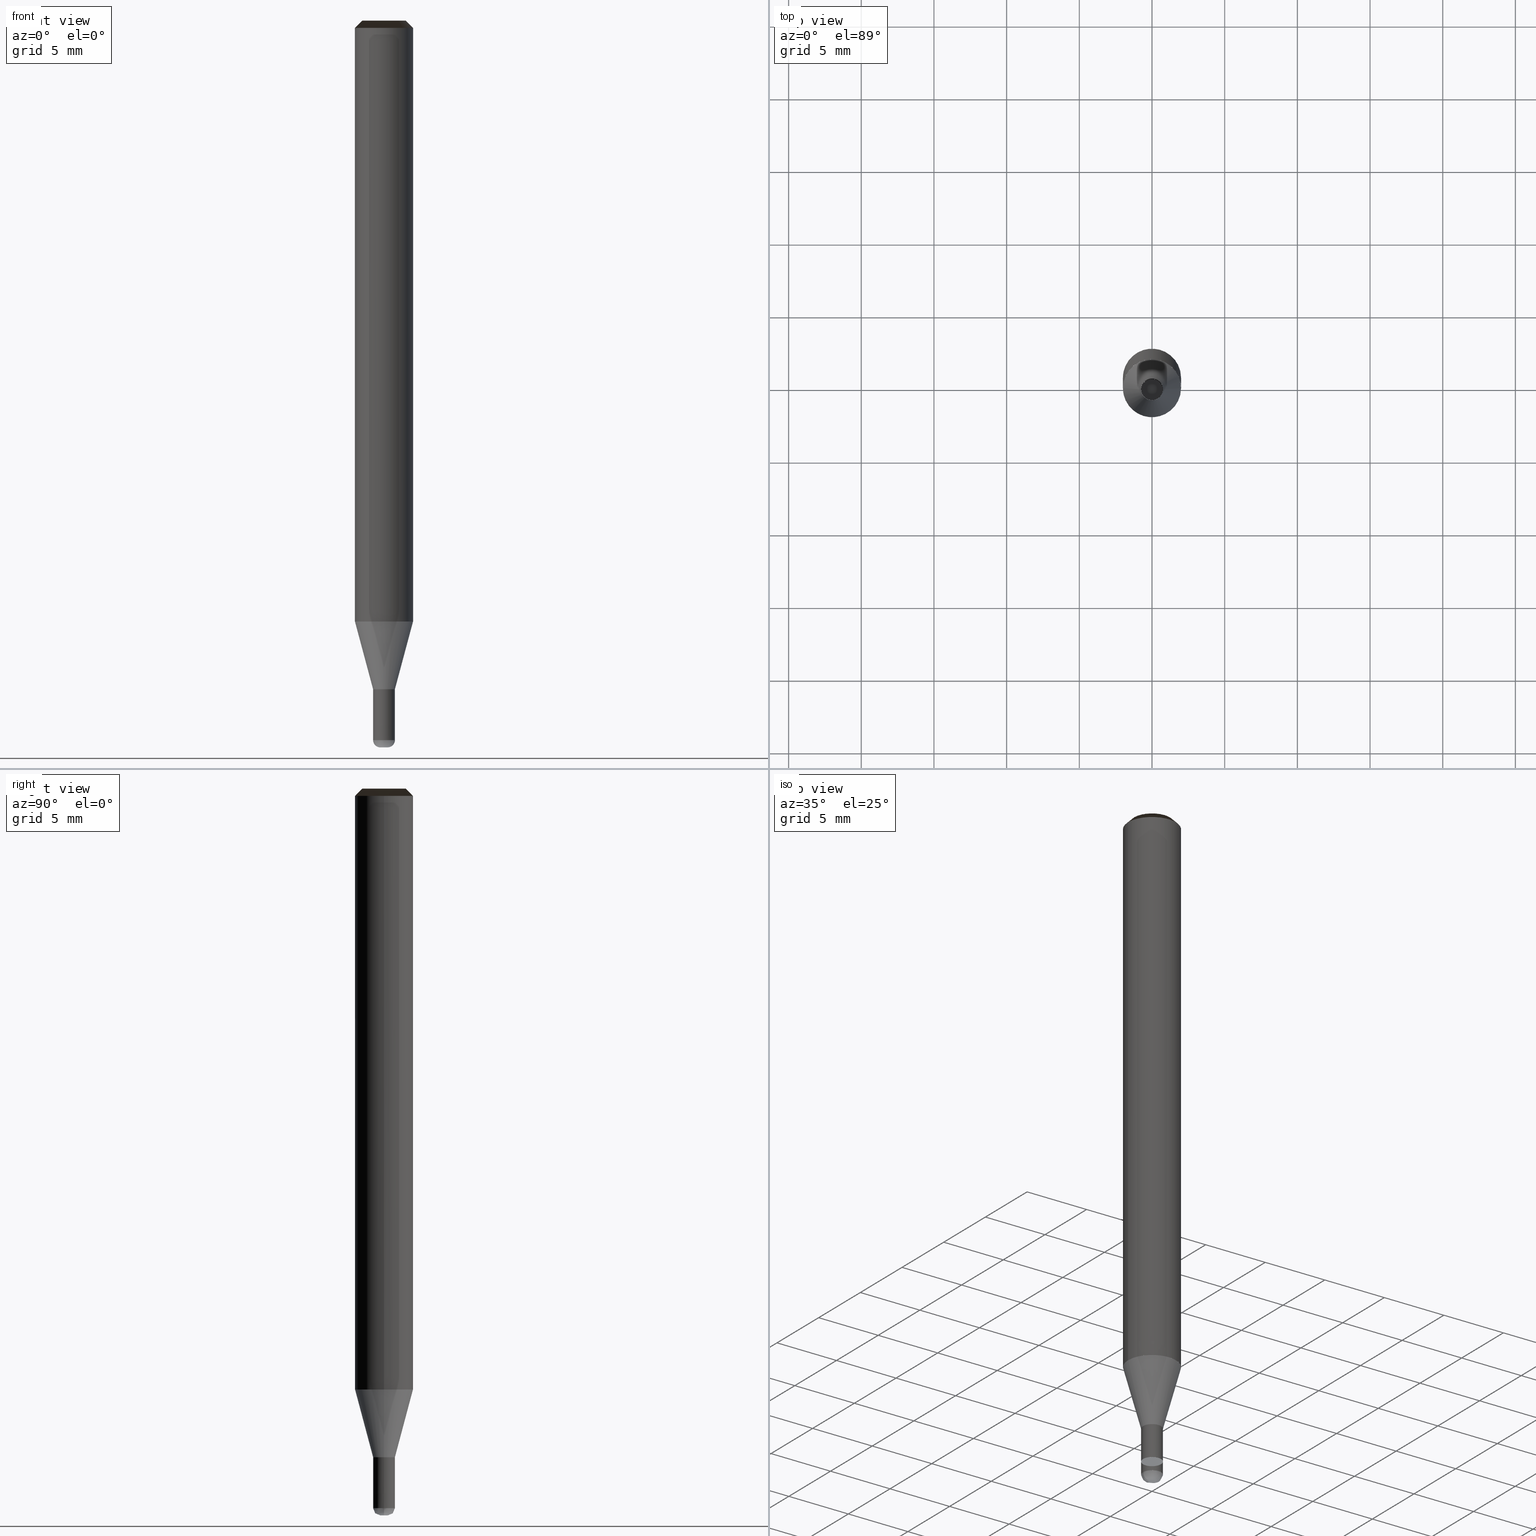
[diagram: canonical four-view strip — front | top / right | iso, engineering-drawing reading convention]
A machine part, canonical four-view strip (front | top / right | iso — engineering-drawing reading convention). The complete STEP part file that produces these views, byte-faithful:
ISO-10303-21;
HEADER;
/* Generated by ISBE GmbH (www.isbe.de) */
/* OPTION: using custom schema-name function */

FILE_DESCRIPTION(
/* description */ (''),
/* implementation_level */ '2;1');

FILE_NAME(
/*name*/ 'SHRF-4015-R005-040-STH',
/*time_stamp*/'2024-3-13T8:56:31',
/*author*/ ('ISBE GmbH'),
/*organization*/ ('ISBE GmbH'),
/*preprocessor_version*/ 'STEP IO v1.0',
/*originating_system*/ '',
/*authorisation*/ '');

FILE_SCHEMA (('AUTOMOTIVE_DESIGN'));
ENDSEC;

DATA;
#10=SHAPE_DEFINITION_REPRESENTATION(#11,#57);
#11=PRODUCT_DEFINITION_SHAPE('Document','',#13);
#12=PRODUCT_DEFINITION_CONTEXT('3D Mechanical Parts',#17,'design');
#13=PRODUCT_DEFINITION('A','First version',#14,#12);
#14=PRODUCT_DEFINITION_FORMATION_WITH_SPECIFIED_SOURCE('A','First version',#19,.MADE.);
#15=PRODUCT_RELATED_PRODUCT_CATEGORY('tool','tool',(#19));
#16=APPLICATION_PROTOCOL_DEFINITION('Draft International Standard', 'automotive_design',1999,#17);
#17=APPLICATION_CONTEXT('data for automotive mechanical design processes');
#18=PRODUCT_CONTEXT('3D Mechanical Parts',#17,'mechanical');
#19=PRODUCT('Document','Document','ISBE converted to STEP',(#18));
#20=(
LENGTH_UNIT()
NAMED_UNIT(*)
SI_UNIT(.MILLI.,.METRE.)
);
#21=(
NAMED_UNIT(*)
PLANE_ANGLE_UNIT()
SI_UNIT($,.RADIAN.)
);
#22=DIMENSIONAL_EXPONENTS(0.,0.,0.,0.,0.,0.,0.);
#23=PLANE_ANGLE_MEASURE_WITH_UNIT(PLANE_ANGLE_MEASURE(0.01745329252),#21);
#24=(
CONVERSION_BASED_UNIT('DEGREES',#23)
NAMED_UNIT(#22)
PLANE_ANGLE_UNIT()
);
#25=(
NAMED_UNIT(*)
SI_UNIT($,.STERADIAN.)
SOLID_ANGLE_UNIT()
);
#26=UNCERTAINTY_MEASURE_WITH_UNIT(LENGTH_MEASURE(0.001),#20, 'DISTANCE_ACCURACY_VALUE', 'Maximum model space distance between geometric entities at asserted connectivities');
#27=(
GEOMETRIC_REPRESENTATION_CONTEXT(3)
GLOBAL_UNCERTAINTY_ASSIGNED_CONTEXT((#26))
GLOBAL_UNIT_ASSIGNED_CONTEXT((#25,#24,#20))
REPRESENTATION_CONTEXT('ID1','3D')
);
#28=CARTESIAN_POINT('',(0.0,0.0,0.0));
#29=DIRECTION('',(1.0,0.0,0.0));
#30=DIRECTION('',(0.0,0.0,1.0));
#31=AXIS2_PLACEMENT_3D('',#28,#30,#29);
#32=CARTESIAN_POINT('',(0.0,0.0,0.0));
#33=DIRECTION('',(1.0,0.0,0.0));
#34=DIRECTION('',(0.0,0.0,1.0));
#35=AXIS2_PLACEMENT_3D('',#32,#34,#33);
#36=CARTESIAN_POINT('',(0.0,0.0,0.0));
#37=DIRECTION('',(1.0,0.0,0.0));
#38=DIRECTION('',(0.0,0.0,1.0));
#39=AXIS2_PLACEMENT_3D('',#36,#38,#37);
#40=CARTESIAN_POINT('',(0.0,0.0,0.0));
#41=DIRECTION('',(0.0,0.0,1.0));
#42=DIRECTION('',(1.0,0.0,0.0));
#43=AXIS2_PLACEMENT_3D('MCS',#40,#42,#41);
#44=CARTESIAN_POINT('',(0.0,0.0,41.334936490539));
#45=DIRECTION('',(0.0,0.0,1.0));
#46=DIRECTION('',(1.0,0.0,0.0));
#47=AXIS2_PLACEMENT_3D('PCS',#44,#46,#45);
#48=CARTESIAN_POINT('',(0.0,0.0,-8.665063509461));
#49=DIRECTION('',(0.0,0.0,1.0));
#50=DIRECTION('',(1.0,0.0,0.0));
#51=AXIS2_PLACEMENT_3D('CIP',#48,#50,#49);
#52=CARTESIAN_POINT('',(0.0,-0.75,-8.665063509461));
#53=DIRECTION('',(0.0,0.0,1.0));
#54=DIRECTION('',(1.0,0.0,0.0));
#55=AXIS2_PLACEMENT_3D('CRP',#52,#54,#53);
#57=SHAPE_REPRESENTATION('Document',(#31,#35,#39,#43,#47,#51,#55),#27);
#58=DIRECTION('',(1.0,0.0,0.0));
#59=DIRECTION('',(0.0,0.0,1.0));
#60=CARTESIAN_POINT('',(-0.007366961211,-0.001406372111,-8.665063509461));
#61=CARTESIAN_POINT('',(0.00190277487,-0.04996378136,-8.665063509461));
#62=CARTESIAN_POINT('',(0.011331853607,-0.099355870958,-8.665063509461));
#63=CARTESIAN_POINT('',(0.020725299702,-0.148561307049,-8.665063509461));
#64=CARTESIAN_POINT('',(0.030109916326,-0.197720491955,-8.665063509461));
#65=CARTESIAN_POINT('',(0.039491008822,-0.246861216521,-8.665063509461));
#66=CARTESIAN_POINT('',(0.042437270909,-0.262294541983,-8.664816789644));
#67=CARTESIAN_POINT('',(0.045380486241,-0.277711907715,-8.664076873675));
#68=CARTESIAN_POINT('',(0.04831777282,-0.293098217017,-8.662844491763));
#69=CARTESIAN_POINT('',(0.051246250204,-0.30843838135,-8.661120860118));
#70=CARTESIAN_POINT('',(0.054163043335,-0.323717340376,-8.658907679759));
#71=CARTESIAN_POINT('',(0.057065286098,-0.338920080599,-8.656207134825));
#72=CARTESIAN_POINT('',(0.05995012469,-0.354031653021,-8.65302189043));
#73=CARTESIAN_POINT('',(0.062814720846,-0.369037190037,-8.649355090025));
#74=CARTESIAN_POINT('',(0.065656254956,-0.383921921759,-8.6452103523));
#75=CARTESIAN_POINT('',(0.068471929091,-0.398671191865,-8.640591767609));
#76=CARTESIAN_POINT('',(0.071258969954,-0.413270473075,-8.635503893938));
#77=CARTESIAN_POINT('',(0.074014631772,-0.427705382275,-8.629951752405));
#78=CARTESIAN_POINT('',(0.076736199125,-0.441961695355,-8.623940822303));
#79=CARTESIAN_POINT('',(0.079420989724,-0.456025361755,-8.617477035694));
#80=CARTESIAN_POINT('',(0.082066357138,-0.469882518747,-8.610566771555));
#81=CARTESIAN_POINT('',(0.084669693472,-0.48351950546,-8.603216849483));
#82=CARTESIAN_POINT('',(0.087228431991,-0.496922876639,-8.595434522963));
#83=CARTESIAN_POINT('',(0.0897400497,-0.510079416149,-8.587227472212));
#84=CARTESIAN_POINT('',(0.092202069872,-0.52297615021,-8.578603796598));
#85=CARTESIAN_POINT('',(0.094612064519,-0.535600360366,-8.569572006649));
#86=CARTESIAN_POINT('',(0.096967656819,-0.547939596168,-8.560141015649));
#87=CARTESIAN_POINT('',(0.09926652348,-0.559981687585,-8.550320130849));
#88=CARTESIAN_POINT('',(0.101506397056,-0.571714757105,-8.540119044276));
#89=CARTESIAN_POINT('',(0.103685068195,-0.583127231549,-8.529547823172));
#90=CARTESIAN_POINT('',(0.105800387839,-0.594207853558,-8.518616900054));
#91=CARTESIAN_POINT('',(0.107850269352,-0.604945692767,-8.507337062425));
#92=CARTESIAN_POINT('',(0.109832690594,-0.615330156648,-8.495719442123));
#93=CARTESIAN_POINT('',(0.11174569592,-0.625351001007,-8.483775504335));
#94=CARTESIAN_POINT('',(0.113587398123,-0.634998340137,-8.471517036288));
#95=CARTESIAN_POINT('',(0.115355980302,-0.644262656608,-8.458956135607));
#96=CARTESIAN_POINT('',(0.117049697658,-0.653134810688,-8.446105198387));
#97=CARTESIAN_POINT('',(0.118666879223,-0.661606049395,-8.432976906951));
#98=CARTESIAN_POINT('',(0.120205929516,-0.669668015156,-8.419584217336));
#99=CARTESIAN_POINT('',(0.121665330115,-0.677312754074,-8.405940346512));
#100=CARTESIAN_POINT('',(0.123043641168,-0.684532723799,-8.392058759331));
#101=CARTESIAN_POINT('',(0.124339502809,-0.691320800986,-8.377953155244));
#102=CARTESIAN_POINT('',(0.125551636507,-0.69767028834,-8.363637454778));
#103=CARTESIAN_POINT('',(0.126678846328,-0.703574921236,-8.349125785803));
#104=CARTESIAN_POINT('',(0.12772002012,-0.709028873916,-8.334432469584));
#105=CARTESIAN_POINT('',(0.128674130611,-0.714026765242,-8.319572006649));
#106=CARTESIAN_POINT('',(0.129540236422,-0.718563664023,-8.304559062481));
#107=CARTESIAN_POINT('',(0.130317483002,-0.722635093883,-8.289408453044));
#108=CARTESIAN_POINT('',(0.131005103469,-0.726237037687,-8.274135130159));
#109=CARTESIAN_POINT('',(0.13160241937,-0.729365941509,-8.258754166754));
#110=CARTESIAN_POINT('',(0.132108841351,-0.73201871815,-8.243280741981));
#111=CARTESIAN_POINT('',(0.132523869736,-0.734192750182,-8.227730126243));
#112=CARTESIAN_POINT('',(0.132847095028,-0.735885892537,-8.21211766612));
#113=CARTESIAN_POINT('',(0.133078198307,-0.737096474627,-8.196458769226));
#114=CARTESIAN_POINT('',(0.133216951547,-0.737823301994,-8.180768889));
#115=CARTESIAN_POINT('',(0.133263217844,-0.738065657493,-8.165063509461));
#116=CARTESIAN_POINT('',(0.153493840915,-0.734125085255,-8.088140432538));
#117=CARTESIAN_POINT('',(0.17360854374,-0.729630093637,-8.011217355615));
#118=CARTESIAN_POINT('',(0.193592135473,-0.724584077304,-7.934294278692));
#119=CARTESIAN_POINT('',(0.213429524285,-0.718990847065,-7.857371201769));
#120=CARTESIAN_POINT('',(0.233105728761,-0.712854626988,-7.780448124846));
#121=CARTESIAN_POINT('',(0.252605889213,-0.706180051216,-7.703525047923));
#122=CARTESIAN_POINT('',(0.271915278904,-0.69897216046,-7.626601971));
#123=CARTESIAN_POINT('',(0.29101931517,-0.691236398201,-7.549678894076));
#124=CARTESIAN_POINT('',(0.309903570432,-0.682978606571,-7.472755817153));
#125=CARTESIAN_POINT('',(0.328553783091,-0.674205021946,-7.39583274023));
#126=CARTESIAN_POINT('',(0.3469558683,-0.664922270233,-7.318909663307));
#127=CARTESIAN_POINT('',(0.365095928601,-0.655137361871,-7.241986586384));
#128=CARTESIAN_POINT('',(0.38296026442,-0.644857686529,-7.165063509461));
#129=CARTESIAN_POINT('',(0.001406372111,-0.007366961211,-8.665063509461));
#130=CARTESIAN_POINT('',(0.04996378136,0.00190277487,-8.665063509461));
#131=CARTESIAN_POINT('',(0.099355870958,0.011331853607,-8.665063509461));
#132=CARTESIAN_POINT('',(0.148561307049,0.020725299702,-8.665063509461));
#133=CARTESIAN_POINT('',(0.197720491955,0.030109916326,-8.665063509461));
#134=CARTESIAN_POINT('',(0.246861216521,0.039491008822,-8.665063509461));
#135=CARTESIAN_POINT('',(0.262294541983,0.042437270909,-8.664816789644));
#136=CARTESIAN_POINT('',(0.277711907715,0.045380486241,-8.664076873675));
#137=CARTESIAN_POINT('',(0.293098217017,0.04831777282,-8.662844491763));
#138=CARTESIAN_POINT('',(0.30843838135,0.051246250204,-8.661120860118));
#139=CARTESIAN_POINT('',(0.323717340376,0.054163043335,-8.658907679759));
#140=CARTESIAN_POINT('',(0.338920080599,0.057065286098,-8.656207134825));
#141=CARTESIAN_POINT('',(0.354031653021,0.05995012469,-8.65302189043));
#142=CARTESIAN_POINT('',(0.369037190037,0.062814720846,-8.649355090025));
#143=CARTESIAN_POINT('',(0.383921921759,0.065656254956,-8.6452103523));
#144=CARTESIAN_POINT('',(0.398671191865,0.068471929091,-8.640591767609));
#145=CARTESIAN_POINT('',(0.413270473075,0.071258969954,-8.635503893938));
#146=CARTESIAN_POINT('',(0.427705382275,0.074014631772,-8.629951752405));
#147=CARTESIAN_POINT('',(0.441961695355,0.076736199125,-8.623940822303));
#148=CARTESIAN_POINT('',(0.456025361755,0.079420989724,-8.617477035694));
#149=CARTESIAN_POINT('',(0.469882518747,0.082066357138,-8.610566771555));
#150=CARTESIAN_POINT('',(0.48351950546,0.084669693472,-8.603216849483));
#151=CARTESIAN_POINT('',(0.496922876639,0.087228431991,-8.595434522963));
#152=CARTESIAN_POINT('',(0.510079416149,0.0897400497,-8.587227472212));
#153=CARTESIAN_POINT('',(0.52297615021,0.092202069872,-8.578603796598));
#154=CARTESIAN_POINT('',(0.535600360366,0.094612064519,-8.569572006649));
#155=CARTESIAN_POINT('',(0.547939596168,0.096967656819,-8.560141015649));
#156=CARTESIAN_POINT('',(0.559981687585,0.09926652348,-8.550320130849));
#157=CARTESIAN_POINT('',(0.571714757105,0.101506397056,-8.540119044276));
#158=CARTESIAN_POINT('',(0.583127231549,0.103685068195,-8.529547823172));
#159=CARTESIAN_POINT('',(0.594207853558,0.105800387839,-8.518616900054));
#160=CARTESIAN_POINT('',(0.604945692767,0.107850269352,-8.507337062425));
#161=CARTESIAN_POINT('',(0.615330156648,0.109832690594,-8.495719442123));
#162=CARTESIAN_POINT('',(0.625351001007,0.11174569592,-8.483775504335));
#163=CARTESIAN_POINT('',(0.634998340137,0.113587398123,-8.471517036288));
#164=CARTESIAN_POINT('',(0.644262656608,0.115355980302,-8.458956135607));
#165=CARTESIAN_POINT('',(0.653134810688,0.117049697658,-8.446105198387));
#166=CARTESIAN_POINT('',(0.661606049395,0.118666879223,-8.432976906951));
#167=CARTESIAN_POINT('',(0.669668015156,0.120205929516,-8.419584217336));
#168=CARTESIAN_POINT('',(0.677312754074,0.121665330115,-8.405940346512));
#169=CARTESIAN_POINT('',(0.684532723799,0.123043641168,-8.392058759331));
#170=CARTESIAN_POINT('',(0.691320800986,0.124339502809,-8.377953155244));
#171=CARTESIAN_POINT('',(0.69767028834,0.125551636507,-8.363637454778));
#172=CARTESIAN_POINT('',(0.703574921236,0.126678846328,-8.349125785803));
#173=CARTESIAN_POINT('',(0.709028873916,0.12772002012,-8.334432469584));
#174=CARTESIAN_POINT('',(0.714026765242,0.128674130611,-8.319572006649));
#175=CARTESIAN_POINT('',(0.718563664023,0.129540236422,-8.304559062481));
#176=CARTESIAN_POINT('',(0.722635093883,0.130317483002,-8.289408453044));
#177=CARTESIAN_POINT('',(0.726237037687,0.131005103469,-8.274135130159));
#178=CARTESIAN_POINT('',(0.729365941509,0.13160241937,-8.258754166754));
#179=CARTESIAN_POINT('',(0.73201871815,0.132108841351,-8.243280741981));
#180=CARTESIAN_POINT('',(0.734192750182,0.132523869736,-8.227730126243));
#181=CARTESIAN_POINT('',(0.735885892537,0.132847095028,-8.21211766612));
#182=CARTESIAN_POINT('',(0.737096474627,0.133078198307,-8.196458769226));
#183=CARTESIAN_POINT('',(0.737823301994,0.133216951547,-8.180768889));
#184=CARTESIAN_POINT('',(0.738065657493,0.133263217844,-8.165063509461));
#185=CARTESIAN_POINT('',(0.734125085255,0.153493840915,-8.088140432538));
#186=CARTESIAN_POINT('',(0.729630093637,0.17360854374,-8.011217355615));
#187=CARTESIAN_POINT('',(0.724584077304,0.193592135473,-7.934294278692));
#188=CARTESIAN_POINT('',(0.718990847065,0.213429524285,-7.857371201769));
#189=CARTESIAN_POINT('',(0.712854626988,0.233105728761,-7.780448124846));
#190=CARTESIAN_POINT('',(0.706180051216,0.252605889213,-7.703525047923));
#191=CARTESIAN_POINT('',(0.69897216046,0.271915278904,-7.626601971));
#192=CARTESIAN_POINT('',(0.691236398201,0.29101931517,-7.549678894076));
#193=CARTESIAN_POINT('',(0.682978606571,0.309903570432,-7.472755817153));
#194=CARTESIAN_POINT('',(0.674205021946,0.328553783091,-7.39583274023));
#195=CARTESIAN_POINT('',(0.664922270233,0.3469558683,-7.318909663307));
#196=CARTESIAN_POINT('',(0.655137361871,0.365095928601,-7.241986586384));
#197=CARTESIAN_POINT('',(0.644857686529,0.38296026442,-7.165063509461));
#198=CARTESIAN_POINT('',(0.007366961211,0.001406372111,-8.665063509461));
#199=CARTESIAN_POINT('',(-0.00190277487,0.04996378136,-8.665063509461));
#200=CARTESIAN_POINT('',(-0.011331853607,0.099355870958,-8.665063509461));
#201=CARTESIAN_POINT('',(-0.020725299702,0.148561307049,-8.665063509461));
#202=CARTESIAN_POINT('',(-0.030109916326,0.197720491955,-8.665063509461));
#203=CARTESIAN_POINT('',(-0.039491008822,0.246861216521,-8.665063509461));
#204=CARTESIAN_POINT('',(-0.042437270909,0.262294541983,-8.664816789644));
#205=CARTESIAN_POINT('',(-0.045380486241,0.277711907715,-8.664076873675));
#206=CARTESIAN_POINT('',(-0.04831777282,0.293098217017,-8.662844491763));
#207=CARTESIAN_POINT('',(-0.051246250204,0.30843838135,-8.661120860118));
#208=CARTESIAN_POINT('',(-0.054163043335,0.323717340376,-8.658907679759));
#209=CARTESIAN_POINT('',(-0.057065286098,0.338920080599,-8.656207134825));
#210=CARTESIAN_POINT('',(-0.05995012469,0.354031653021,-8.65302189043));
#211=CARTESIAN_POINT('',(-0.062814720846,0.369037190037,-8.649355090025));
#212=CARTESIAN_POINT('',(-0.065656254956,0.383921921759,-8.6452103523));
#213=CARTESIAN_POINT('',(-0.068471929091,0.398671191865,-8.640591767609));
#214=CARTESIAN_POINT('',(-0.071258969954,0.413270473075,-8.635503893938));
#215=CARTESIAN_POINT('',(-0.074014631772,0.427705382275,-8.629951752405));
#216=CARTESIAN_POINT('',(-0.076736199125,0.441961695355,-8.623940822303));
#217=CARTESIAN_POINT('',(-0.079420989724,0.456025361755,-8.617477035694));
#218=CARTESIAN_POINT('',(-0.082066357138,0.469882518747,-8.610566771555));
#219=CARTESIAN_POINT('',(-0.084669693472,0.48351950546,-8.603216849483));
#220=CARTESIAN_POINT('',(-0.087228431991,0.496922876639,-8.595434522963));
#221=CARTESIAN_POINT('',(-0.0897400497,0.510079416149,-8.587227472212));
#222=CARTESIAN_POINT('',(-0.092202069872,0.52297615021,-8.578603796598));
#223=CARTESIAN_POINT('',(-0.094612064519,0.535600360366,-8.569572006649));
#224=CARTESIAN_POINT('',(-0.096967656819,0.547939596168,-8.560141015649));
#225=CARTESIAN_POINT('',(-0.09926652348,0.559981687585,-8.550320130849));
#226=CARTESIAN_POINT('',(-0.101506397056,0.571714757105,-8.540119044276));
#227=CARTESIAN_POINT('',(-0.103685068195,0.583127231549,-8.529547823172));
#228=CARTESIAN_POINT('',(-0.105800387839,0.594207853558,-8.518616900054));
#229=CARTESIAN_POINT('',(-0.107850269352,0.604945692767,-8.507337062425));
#230=CARTESIAN_POINT('',(-0.109832690594,0.615330156648,-8.495719442123));
#231=CARTESIAN_POINT('',(-0.11174569592,0.625351001007,-8.483775504335));
#232=CARTESIAN_POINT('',(-0.113587398123,0.634998340137,-8.471517036288));
#233=CARTESIAN_POINT('',(-0.115355980302,0.644262656608,-8.458956135607));
#234=CARTESIAN_POINT('',(-0.117049697658,0.653134810688,-8.446105198387));
#235=CARTESIAN_POINT('',(-0.118666879223,0.661606049395,-8.432976906951));
#236=CARTESIAN_POINT('',(-0.120205929516,0.669668015156,-8.419584217336));
#237=CARTESIAN_POINT('',(-0.121665330115,0.677312754074,-8.405940346512));
#238=CARTESIAN_POINT('',(-0.123043641168,0.684532723799,-8.392058759331));
#239=CARTESIAN_POINT('',(-0.124339502809,0.691320800986,-8.377953155244));
#240=CARTESIAN_POINT('',(-0.125551636507,0.69767028834,-8.363637454778));
#241=CARTESIAN_POINT('',(-0.126678846328,0.703574921236,-8.349125785803));
#242=CARTESIAN_POINT('',(-0.12772002012,0.709028873916,-8.334432469584));
#243=CARTESIAN_POINT('',(-0.128674130611,0.714026765242,-8.319572006649));
#244=CARTESIAN_POINT('',(-0.129540236422,0.718563664023,-8.304559062481));
#245=CARTESIAN_POINT('',(-0.130317483002,0.722635093883,-8.289408453044));
#246=CARTESIAN_POINT('',(-0.131005103469,0.726237037687,-8.274135130159));
#247=CARTESIAN_POINT('',(-0.13160241937,0.729365941509,-8.258754166754));
#248=CARTESIAN_POINT('',(-0.132108841351,0.73201871815,-8.243280741981));
#249=CARTESIAN_POINT('',(-0.132523869736,0.734192750182,-8.227730126243));
#250=CARTESIAN_POINT('',(-0.132847095028,0.735885892537,-8.21211766612));
#251=CARTESIAN_POINT('',(-0.133078198307,0.737096474627,-8.196458769226));
#252=CARTESIAN_POINT('',(-0.133216951547,0.737823301994,-8.180768889));
#253=CARTESIAN_POINT('',(-0.133263217844,0.738065657493,-8.165063509461));
#254=CARTESIAN_POINT('',(-0.153493840915,0.734125085255,-8.088140432538));
#255=CARTESIAN_POINT('',(-0.17360854374,0.729630093637,-8.011217355615));
#256=CARTESIAN_POINT('',(-0.193592135473,0.724584077304,-7.934294278692));
#257=CARTESIAN_POINT('',(-0.213429524285,0.718990847065,-7.857371201769));
#258=CARTESIAN_POINT('',(-0.233105728761,0.712854626988,-7.780448124846));
#259=CARTESIAN_POINT('',(-0.252605889213,0.706180051216,-7.703525047923));
#260=CARTESIAN_POINT('',(-0.271915278904,0.69897216046,-7.626601971));
#261=CARTESIAN_POINT('',(-0.29101931517,0.691236398201,-7.549678894076));
#262=CARTESIAN_POINT('',(-0.309903570432,0.682978606571,-7.472755817153));
#263=CARTESIAN_POINT('',(-0.328553783091,0.674205021946,-7.39583274023));
#264=CARTESIAN_POINT('',(-0.3469558683,0.664922270233,-7.318909663307));
#265=CARTESIAN_POINT('',(-0.365095928601,0.655137361871,-7.241986586384));
#266=CARTESIAN_POINT('',(-0.38296026442,0.644857686529,-7.165063509461));
#267=CARTESIAN_POINT('',(-0.001406372111,0.007366961211,-8.665063509461));
#268=CARTESIAN_POINT('',(-0.04996378136,-0.00190277487,-8.665063509461));
#269=CARTESIAN_POINT('',(-0.099355870958,-0.011331853607,-8.665063509461));
#270=CARTESIAN_POINT('',(-0.148561307049,-0.020725299702,-8.665063509461));
#271=CARTESIAN_POINT('',(-0.197720491955,-0.030109916326,-8.665063509461));
#272=CARTESIAN_POINT('',(-0.246861216521,-0.039491008822,-8.665063509461));
#273=CARTESIAN_POINT('',(-0.262294541983,-0.042437270909,-8.664816789644));
#274=CARTESIAN_POINT('',(-0.277711907715,-0.045380486241,-8.664076873675));
#275=CARTESIAN_POINT('',(-0.293098217017,-0.04831777282,-8.662844491763));
#276=CARTESIAN_POINT('',(-0.30843838135,-0.051246250204,-8.661120860118));
#277=CARTESIAN_POINT('',(-0.323717340376,-0.054163043335,-8.658907679759));
#278=CARTESIAN_POINT('',(-0.338920080599,-0.057065286098,-8.656207134825));
#279=CARTESIAN_POINT('',(-0.354031653021,-0.05995012469,-8.65302189043));
#280=CARTESIAN_POINT('',(-0.369037190037,-0.062814720846,-8.649355090025));
#281=CARTESIAN_POINT('',(-0.383921921759,-0.065656254956,-8.6452103523));
#282=CARTESIAN_POINT('',(-0.398671191865,-0.068471929091,-8.640591767609));
#283=CARTESIAN_POINT('',(-0.413270473075,-0.071258969954,-8.635503893938));
#284=CARTESIAN_POINT('',(-0.427705382275,-0.074014631772,-8.629951752405));
#285=CARTESIAN_POINT('',(-0.441961695355,-0.076736199125,-8.623940822303));
#286=CARTESIAN_POINT('',(-0.456025361755,-0.079420989724,-8.617477035694));
#287=CARTESIAN_POINT('',(-0.469882518747,-0.082066357138,-8.610566771555));
#288=CARTESIAN_POINT('',(-0.48351950546,-0.084669693472,-8.603216849483));
#289=CARTESIAN_POINT('',(-0.496922876639,-0.087228431991,-8.595434522963));
#290=CARTESIAN_POINT('',(-0.510079416149,-0.0897400497,-8.587227472212));
#291=CARTESIAN_POINT('',(-0.52297615021,-0.092202069872,-8.578603796598));
#292=CARTESIAN_POINT('',(-0.535600360366,-0.094612064519,-8.569572006649));
#293=CARTESIAN_POINT('',(-0.547939596168,-0.096967656819,-8.560141015649));
#294=CARTESIAN_POINT('',(-0.559981687585,-0.09926652348,-8.550320130849));
#295=CARTESIAN_POINT('',(-0.571714757105,-0.101506397056,-8.540119044276));
#296=CARTESIAN_POINT('',(-0.583127231549,-0.103685068195,-8.529547823172));
#297=CARTESIAN_POINT('',(-0.594207853558,-0.105800387839,-8.518616900054));
#298=CARTESIAN_POINT('',(-0.604945692767,-0.107850269352,-8.507337062425));
#299=CARTESIAN_POINT('',(-0.615330156648,-0.109832690594,-8.495719442123));
#300=CARTESIAN_POINT('',(-0.625351001007,-0.11174569592,-8.483775504335));
#301=CARTESIAN_POINT('',(-0.634998340137,-0.113587398123,-8.471517036288));
#302=CARTESIAN_POINT('',(-0.644262656608,-0.115355980302,-8.458956135607));
#303=CARTESIAN_POINT('',(-0.653134810688,-0.117049697658,-8.446105198387));
#304=CARTESIAN_POINT('',(-0.661606049395,-0.118666879223,-8.432976906951));
#305=CARTESIAN_POINT('',(-0.669668015156,-0.120205929516,-8.419584217336));
#306=CARTESIAN_POINT('',(-0.677312754074,-0.121665330115,-8.405940346512));
#307=CARTESIAN_POINT('',(-0.684532723799,-0.123043641168,-8.392058759331));
#308=CARTESIAN_POINT('',(-0.691320800986,-0.124339502809,-8.377953155244));
#309=CARTESIAN_POINT('',(-0.69767028834,-0.125551636507,-8.363637454778));
#310=CARTESIAN_POINT('',(-0.703574921236,-0.126678846328,-8.349125785803));
#311=CARTESIAN_POINT('',(-0.709028873916,-0.12772002012,-8.334432469584));
#312=CARTESIAN_POINT('',(-0.714026765242,-0.128674130611,-8.319572006649));
#313=CARTESIAN_POINT('',(-0.718563664023,-0.129540236422,-8.304559062481));
#314=CARTESIAN_POINT('',(-0.722635093883,-0.130317483002,-8.289408453044));
#315=CARTESIAN_POINT('',(-0.726237037687,-0.131005103469,-8.274135130159));
#316=CARTESIAN_POINT('',(-0.729365941509,-0.13160241937,-8.258754166754));
#317=CARTESIAN_POINT('',(-0.73201871815,-0.132108841351,-8.243280741981));
#318=CARTESIAN_POINT('',(-0.734192750182,-0.132523869736,-8.227730126243));
#319=CARTESIAN_POINT('',(-0.735885892537,-0.132847095028,-8.21211766612));
#320=CARTESIAN_POINT('',(-0.737096474627,-0.133078198307,-8.196458769226));
#321=CARTESIAN_POINT('',(-0.737823301994,-0.133216951547,-8.180768889));
#322=CARTESIAN_POINT('',(-0.738065657493,-0.133263217844,-8.165063509461));
#323=CARTESIAN_POINT('',(-0.734125085255,-0.153493840915,-8.088140432538));
#324=CARTESIAN_POINT('',(-0.729630093637,-0.17360854374,-8.011217355615));
#325=CARTESIAN_POINT('',(-0.724584077304,-0.193592135473,-7.934294278692));
#326=CARTESIAN_POINT('',(-0.718990847065,-0.213429524285,-7.857371201769));
#327=CARTESIAN_POINT('',(-0.712854626988,-0.233105728761,-7.780448124846));
#328=CARTESIAN_POINT('',(-0.706180051216,-0.252605889213,-7.703525047923));
#329=CARTESIAN_POINT('',(-0.69897216046,-0.271915278904,-7.626601971));
#330=CARTESIAN_POINT('',(-0.691236398201,-0.29101931517,-7.549678894076));
#331=CARTESIAN_POINT('',(-0.682978606571,-0.309903570432,-7.472755817153));
#332=CARTESIAN_POINT('',(-0.674205021946,-0.328553783091,-7.39583274023));
#333=CARTESIAN_POINT('',(-0.664922270233,-0.3469558683,-7.318909663307));
#334=CARTESIAN_POINT('',(-0.655137361871,-0.365095928601,-7.241986586384));
#335=CARTESIAN_POINT('',(-0.644857686529,-0.38296026442,-7.165063509461));
#336=CARTESIAN_POINT('',(0.0,0.0,-8.665063509461));
#337=CARTESIAN_POINT('',(0.25,0.0,-8.665063509461));
#338=CARTESIAN_POINT('',(0.25,0.25,-8.665063509461));
#339=CARTESIAN_POINT('',(0.0,0.25,-8.665063509461));
#340=CARTESIAN_POINT('',(-0.25,0.25,-8.665063509461));
#341=CARTESIAN_POINT('',(-0.25,0.0,-8.665063509461));
#342=CARTESIAN_POINT('',(0.75,0.0,-8.665063509461));
#343=CARTESIAN_POINT('',(0.75,0.75,-8.665063509461));
#344=CARTESIAN_POINT('',(0.0,0.75,-8.665063509461));
#345=CARTESIAN_POINT('',(-0.75,0.75,-8.665063509461));
#346=CARTESIAN_POINT('',(-0.75,0.0,-8.665063509461));
#347=CARTESIAN_POINT('',(0.75,0.0,-8.165063509461));
#348=CARTESIAN_POINT('',(0.75,0.75,-8.165063509461));
#349=CARTESIAN_POINT('',(0.0,0.75,-8.165063509461));
#350=CARTESIAN_POINT('',(-0.75,0.75,-8.165063509461));
#351=CARTESIAN_POINT('',(-0.75,0.0,-8.165063509461));
#352=CARTESIAN_POINT('',(0.75,0.0,-7.165063509461));
#353=CARTESIAN_POINT('',(0.75,0.75,-7.165063509461));
#354=CARTESIAN_POINT('',(0.0,0.75,-7.165063509461));
#355=CARTESIAN_POINT('',(-0.75,0.75,-7.165063509461));
#356=CARTESIAN_POINT('',(-0.75,0.0,-7.165063509461));
#357=CARTESIAN_POINT('',(0.0,0.0,-7.165063509461));
#358=CARTESIAN_POINT('',(-0.25,-0.25,-8.665063509461));
#359=CARTESIAN_POINT('',(0.0,-0.25,-8.665063509461));
#360=CARTESIAN_POINT('',(0.25,-0.25,-8.665063509461));
#361=CARTESIAN_POINT('',(-0.75,-0.75,-8.665063509461));
#362=CARTESIAN_POINT('',(0.0,-0.75,-8.665063509461));
#363=CARTESIAN_POINT('',(0.75,-0.75,-8.665063509461));
#364=CARTESIAN_POINT('',(-0.75,-0.75,-8.165063509461));
#365=CARTESIAN_POINT('',(0.0,-0.75,-8.165063509461));
#366=CARTESIAN_POINT('',(0.75,-0.75,-8.165063509461));
#367=CARTESIAN_POINT('',(-0.75,-0.75,-7.165063509461));
#368=CARTESIAN_POINT('',(0.0,-0.75,-7.165063509461));
#369=CARTESIAN_POINT('',(0.75,-0.75,-7.165063509461));
#370=CARTESIAN_POINT('',(0.75,0.0,-4.665063509461));
#371=CARTESIAN_POINT('',(0.75,0.75,-4.665063509461));
#372=CARTESIAN_POINT('',(0.0,0.75,-4.665063509461));
#373=CARTESIAN_POINT('',(-0.75,0.75,-4.665063509461));
#374=CARTESIAN_POINT('',(-0.75,0.0,-4.665063509461));
#375=CARTESIAN_POINT('',(2.0,0.0,-0.0));
#376=CARTESIAN_POINT('',(2.0,2.0,-0.0));
#377=CARTESIAN_POINT('',(0.0,2.0,-0.0));
#378=CARTESIAN_POINT('',(-2.0,2.0,-0.0));
#379=CARTESIAN_POINT('',(-2.0,0.0,-0.0));
#380=CARTESIAN_POINT('',(2.0,0.0,40.834936490539));
#381=CARTESIAN_POINT('',(2.0,2.0,40.834936490539));
#382=CARTESIAN_POINT('',(0.0,2.0,40.834936490539));
#383=CARTESIAN_POINT('',(-2.0,2.0,40.834936490539));
#384=CARTESIAN_POINT('',(-2.0,0.0,40.834936490539));
#385=CARTESIAN_POINT('',(1.5,0.0,41.334936490539));
#386=CARTESIAN_POINT('',(1.5,1.5,41.334936490539));
#387=CARTESIAN_POINT('',(0.0,1.5,41.334936490539));
#388=CARTESIAN_POINT('',(-1.5,1.5,41.334936490539));
#389=CARTESIAN_POINT('',(-1.5,0.0,41.334936490539));
#390=CARTESIAN_POINT('',(0.0,0.0,41.334936490539));
#391=CARTESIAN_POINT('',(-0.75,-0.75,-4.665063509461));
#392=CARTESIAN_POINT('',(0.0,-0.75,-4.665063509461));
#393=CARTESIAN_POINT('',(0.75,-0.75,-4.665063509461));
#394=CARTESIAN_POINT('',(-2.0,-2.0,-0.0));
#395=CARTESIAN_POINT('',(0.0,-2.0,-0.0));
#396=CARTESIAN_POINT('',(2.0,-2.0,-0.0));
#397=CARTESIAN_POINT('',(-2.0,-2.0,40.834936490539));
#398=CARTESIAN_POINT('',(0.0,-2.0,40.834936490539));
#399=CARTESIAN_POINT('',(2.0,-2.0,40.834936490539));
#400=CARTESIAN_POINT('',(-1.5,-1.5,41.334936490539));
#401=CARTESIAN_POINT('',(0.0,-1.5,41.334936490539));
#402=CARTESIAN_POINT('',(1.5,-1.5,41.334936490539));
#403=(
BOUNDED_CURVE()
B_SPLINE_CURVE(1,(#60,#61,#62,#63,#64,#65,#66,#67,#68,#69,#70,#71,#72,#73,#74,#75,#76,#77,#78,#79,#80,#81,#82,#83,#84,#85,#86,#87,#88,#89,#90,#91,#92,#93,#94,#95,#96,#97,#98,#99,#100,#101,#102,#103,#104,#105,#106,#107,#108,#109,#110,#111,#112,#113,#114,#115,#116,#117,#118,#119,#120,#121,#122,#123,#124,#125,#126,#127,#128),.UNSPECIFIED.,.F.,.F.)
B_SPLINE_CURVE_WITH_KNOTS((2,1,1,1,1,1,1,1,1,1,1,1,1,1,1,1,1,1,1,1,1,1,1,1,1,1,1,1,1,1,1,1,1,1,1,1,1,1,1,1,1,1,1,1,1,1,1,1,1,1,1,1,1,1,1,1,1,1,1,1,1,1,1,1,1,1,1,1,2),
(0.0,0.023874450206,0.048159291633,0.07235236025,0.096522688329,0.120683939926,0.128273051234,0.135861798221,0.143450234362,0.151038403029,0.158626339786,0.166214074095,0.173801630578,0.18138902999,0.188976289957,0.196563425554,0.204150449757,0.211737373804,0.21932420748,0.226910959352,0.234497636958,0.242084246958,0.249670795264,0.257257287148,0.264843727327,0.272430120036,0.280016469096,0.287602777962,0.295189049771,0.302775287379,0.310361493395,0.317947670211,0.325533820025,0.333119944864,0.3407060466,0.348292126973,0.355878187598,0.363464229984,0.371050255541,0.378636265594,0.386222261389,0.393808244103,0.40139421485,0.40898017469,0.416566124632,0.424152065641,0.431737998644,0.439323924533,0.446909844171,0.454495758392,0.462081668011,0.469667573822,0.477253476606,0.484839377129,0.49242527615,0.500011174422,0.538471853312,0.576932532203,0.615393211094,0.653853889984,0.692314568875,0.730775247766,0.769235926656,0.807696605547,0.846157284437,0.884617963328,0.923078642219,0.961539321109,1.0),.UNSPECIFIED.)
CURVE()
GEOMETRIC_REPRESENTATION_ITEM()
RATIONAL_B_SPLINE_CURVE((1.0,1.0,1.0,1.0,1.0,1.0,1.0,1.0,1.0,1.0,1.0,1.0,1.0,1.0,1.0,1.0,1.0,1.0,1.0,1.0,1.0,1.0,1.0,1.0,1.0,1.0,1.0,1.0,1.0,1.0,1.0,1.0,1.0,1.0,1.0,1.0,1.0,1.0,1.0,1.0,1.0,1.0,1.0,1.0,1.0,1.0,1.0,1.0,1.0,1.0,1.0,1.0,1.0,1.0,1.0,1.0,1.0,1.0,1.0,1.0,1.0,1.0,1.0,1.0,1.0,1.0,1.0,1.0,1.0))
REPRESENTATION_ITEM('')
);
#404=(
BOUNDED_CURVE()
B_SPLINE_CURVE(1,(#129,#130,#131,#132,#133,#134,#135,#136,#137,#138,#139,#140,#141,#142,#143,#144,#145,#146,#147,#148,#149,#150,#151,#152,#153,#154,#155,#156,#157,#158,#159,#160,#161,#162,#163,#164,#165,#166,#167,#168,#169,#170,#171,#172,#173,#174,#175,#176,#177,#178,#179,#180,#181,#182,#183,#184,#185,#186,#187,#188,#189,#190,#191,#192,#193,#194,#195,#196,#197),.UNSPECIFIED.,.F.,.F.)
B_SPLINE_CURVE_WITH_KNOTS((2,1,1,1,1,1,1,1,1,1,1,1,1,1,1,1,1,1,1,1,1,1,1,1,1,1,1,1,1,1,1,1,1,1,1,1,1,1,1,1,1,1,1,1,1,1,1,1,1,1,1,1,1,1,1,1,1,1,1,1,1,1,1,1,1,1,1,1,2),
(0.0,0.023874450206,0.048159291633,0.07235236025,0.096522688329,0.120683939926,0.128273051234,0.135861798221,0.143450234362,0.151038403029,0.158626339786,0.166214074095,0.173801630578,0.18138902999,0.188976289957,0.196563425554,0.204150449757,0.211737373804,0.21932420748,0.226910959352,0.234497636958,0.242084246958,0.249670795264,0.257257287148,0.264843727327,0.272430120036,0.280016469096,0.287602777962,0.295189049771,0.302775287379,0.310361493395,0.317947670211,0.325533820025,0.333119944864,0.3407060466,0.348292126973,0.355878187598,0.363464229984,0.371050255541,0.378636265594,0.386222261389,0.393808244103,0.40139421485,0.40898017469,0.416566124632,0.424152065641,0.431737998644,0.439323924533,0.446909844171,0.454495758392,0.462081668011,0.469667573822,0.477253476606,0.484839377129,0.49242527615,0.500011174422,0.538471853312,0.576932532203,0.615393211094,0.653853889984,0.692314568875,0.730775247766,0.769235926656,0.807696605547,0.846157284437,0.884617963328,0.923078642219,0.961539321109,1.0),.UNSPECIFIED.)
CURVE()
GEOMETRIC_REPRESENTATION_ITEM()
RATIONAL_B_SPLINE_CURVE((1.0,1.0,1.0,1.0,1.0,1.0,1.0,1.0,1.0,1.0,1.0,1.0,1.0,1.0,1.0,1.0,1.0,1.0,1.0,1.0,1.0,1.0,1.0,1.0,1.0,1.0,1.0,1.0,1.0,1.0,1.0,1.0,1.0,1.0,1.0,1.0,1.0,1.0,1.0,1.0,1.0,1.0,1.0,1.0,1.0,1.0,1.0,1.0,1.0,1.0,1.0,1.0,1.0,1.0,1.0,1.0,1.0,1.0,1.0,1.0,1.0,1.0,1.0,1.0,1.0,1.0,1.0,1.0,1.0))
REPRESENTATION_ITEM('')
);
#405=(
BOUNDED_CURVE()
B_SPLINE_CURVE(1,(#198,#199,#200,#201,#202,#203,#204,#205,#206,#207,#208,#209,#210,#211,#212,#213,#214,#215,#216,#217,#218,#219,#220,#221,#222,#223,#224,#225,#226,#227,#228,#229,#230,#231,#232,#233,#234,#235,#236,#237,#238,#239,#240,#241,#242,#243,#244,#245,#246,#247,#248,#249,#250,#251,#252,#253,#254,#255,#256,#257,#258,#259,#260,#261,#262,#263,#264,#265,#266),.UNSPECIFIED.,.F.,.F.)
B_SPLINE_CURVE_WITH_KNOTS((2,1,1,1,1,1,1,1,1,1,1,1,1,1,1,1,1,1,1,1,1,1,1,1,1,1,1,1,1,1,1,1,1,1,1,1,1,1,1,1,1,1,1,1,1,1,1,1,1,1,1,1,1,1,1,1,1,1,1,1,1,1,1,1,1,1,1,1,2),
(0.0,0.023874450206,0.048159291633,0.07235236025,0.096522688329,0.120683939926,0.128273051234,0.135861798221,0.143450234362,0.151038403029,0.158626339786,0.166214074095,0.173801630578,0.18138902999,0.188976289957,0.196563425554,0.204150449757,0.211737373804,0.21932420748,0.226910959352,0.234497636958,0.242084246958,0.249670795264,0.257257287148,0.264843727327,0.272430120036,0.280016469096,0.287602777962,0.295189049771,0.302775287379,0.310361493395,0.317947670211,0.325533820025,0.333119944864,0.3407060466,0.348292126973,0.355878187598,0.363464229984,0.371050255541,0.378636265594,0.386222261389,0.393808244103,0.40139421485,0.40898017469,0.416566124632,0.424152065641,0.431737998644,0.439323924533,0.446909844171,0.454495758392,0.462081668011,0.469667573822,0.477253476606,0.484839377129,0.49242527615,0.500011174422,0.538471853312,0.576932532203,0.615393211094,0.653853889984,0.692314568875,0.730775247766,0.769235926656,0.807696605547,0.846157284437,0.884617963328,0.923078642219,0.961539321109,1.0),.UNSPECIFIED.)
CURVE()
GEOMETRIC_REPRESENTATION_ITEM()
RATIONAL_B_SPLINE_CURVE((1.0,1.0,1.0,1.0,1.0,1.0,1.0,1.0,1.0,1.0,1.0,1.0,1.0,1.0,1.0,1.0,1.0,1.0,1.0,1.0,1.0,1.0,1.0,1.0,1.0,1.0,1.0,1.0,1.0,1.0,1.0,1.0,1.0,1.0,1.0,1.0,1.0,1.0,1.0,1.0,1.0,1.0,1.0,1.0,1.0,1.0,1.0,1.0,1.0,1.0,1.0,1.0,1.0,1.0,1.0,1.0,1.0,1.0,1.0,1.0,1.0,1.0,1.0,1.0,1.0,1.0,1.0,1.0,1.0))
REPRESENTATION_ITEM('')
);
#406=(
BOUNDED_CURVE()
B_SPLINE_CURVE(1,(#267,#268,#269,#270,#271,#272,#273,#274,#275,#276,#277,#278,#279,#280,#281,#282,#283,#284,#285,#286,#287,#288,#289,#290,#291,#292,#293,#294,#295,#296,#297,#298,#299,#300,#301,#302,#303,#304,#305,#306,#307,#308,#309,#310,#311,#312,#313,#314,#315,#316,#317,#318,#319,#320,#321,#322,#323,#324,#325,#326,#327,#328,#329,#330,#331,#332,#333,#334,#335),.UNSPECIFIED.,.F.,.F.)
B_SPLINE_CURVE_WITH_KNOTS((2,1,1,1,1,1,1,1,1,1,1,1,1,1,1,1,1,1,1,1,1,1,1,1,1,1,1,1,1,1,1,1,1,1,1,1,1,1,1,1,1,1,1,1,1,1,1,1,1,1,1,1,1,1,1,1,1,1,1,1,1,1,1,1,1,1,1,1,2),
(0.0,0.023874450206,0.048159291633,0.07235236025,0.096522688329,0.120683939926,0.128273051234,0.135861798221,0.143450234362,0.151038403029,0.158626339786,0.166214074095,0.173801630578,0.18138902999,0.188976289957,0.196563425554,0.204150449757,0.211737373804,0.21932420748,0.226910959352,0.234497636958,0.242084246958,0.249670795264,0.257257287148,0.264843727327,0.272430120036,0.280016469096,0.287602777962,0.295189049771,0.302775287379,0.310361493395,0.317947670211,0.325533820025,0.333119944864,0.3407060466,0.348292126973,0.355878187598,0.363464229984,0.371050255541,0.378636265594,0.386222261389,0.393808244103,0.40139421485,0.40898017469,0.416566124632,0.424152065641,0.431737998644,0.439323924533,0.446909844171,0.454495758392,0.462081668011,0.469667573822,0.477253476606,0.484839377129,0.49242527615,0.500011174422,0.538471853312,0.576932532203,0.615393211094,0.653853889984,0.692314568875,0.730775247766,0.769235926656,0.807696605547,0.846157284437,0.884617963328,0.923078642219,0.961539321109,1.0),.UNSPECIFIED.)
CURVE()
GEOMETRIC_REPRESENTATION_ITEM()
RATIONAL_B_SPLINE_CURVE((1.0,1.0,1.0,1.0,1.0,1.0,1.0,1.0,1.0,1.0,1.0,1.0,1.0,1.0,1.0,1.0,1.0,1.0,1.0,1.0,1.0,1.0,1.0,1.0,1.0,1.0,1.0,1.0,1.0,1.0,1.0,1.0,1.0,1.0,1.0,1.0,1.0,1.0,1.0,1.0,1.0,1.0,1.0,1.0,1.0,1.0,1.0,1.0,1.0,1.0,1.0,1.0,1.0,1.0,1.0,1.0,1.0,1.0,1.0,1.0,1.0,1.0,1.0,1.0,1.0,1.0,1.0,1.0,1.0))
REPRESENTATION_ITEM('')
);
#407=SHAPE_REPRESENTATION_RELATIONSHIP('','',#57,#408);
#408=GEOMETRICALLY_BOUNDED_WIREFRAME_SHAPE_REPRESENTATION('Curves',(#409,#31),#27);
#409=GEOMETRIC_CURVE_SET('CurveSet',(#403,#404,#405,#406));
#410=(
BOUNDED_SURFACE()
B_SPLINE_SURFACE(1,2,(
(#336,#336,#336,#336,#336),
(#337,#338,#339,#340,#341)
), .UNSPECIFIED.,.F.,.F.,.F.)
B_SPLINE_SURFACE_WITH_KNOTS((2,2),(3,2,3),(
0.0,1.0),(
0.0,0.5,1.0), .UNSPECIFIED.)
GEOMETRIC_REPRESENTATION_ITEM()
RATIONAL_B_SPLINE_SURFACE(((1.0,0.707106781187,1.0,0.707106781187,1.0),
(1.0,0.707106781187,1.0,0.707106781187,1.0)
))
REPRESENTATION_ITEM('')
SURFACE()
);
#411=(
BOUNDED_CURVE()
B_SPLINE_CURVE(2,(#337,#338,#339,#340,#341),.UNSPECIFIED.,.F.,.F.)
B_SPLINE_CURVE_WITH_KNOTS((3,2,3),
(0.0,0.5,1.0),.UNSPECIFIED.)
CURVE()
GEOMETRIC_REPRESENTATION_ITEM()
RATIONAL_B_SPLINE_CURVE((1.0,0.707106781187,1.0,0.707106781187,1.0))
REPRESENTATION_ITEM('')
);
#412=(
BOUNDED_CURVE()
B_SPLINE_CURVE(1,(#341,#336),.UNSPECIFIED.,.F.,.F.)
B_SPLINE_CURVE_WITH_KNOTS((2,2),
(0.0,1.0),.UNSPECIFIED.)
CURVE()
GEOMETRIC_REPRESENTATION_ITEM()
RATIONAL_B_SPLINE_CURVE((1.0,1.0))
REPRESENTATION_ITEM('')
);
#413=(
BOUNDED_CURVE()
B_SPLINE_CURVE(1,(#336,#337),.UNSPECIFIED.,.F.,.F.)
B_SPLINE_CURVE_WITH_KNOTS((2,2),
(0.0,1.0),.UNSPECIFIED.)
CURVE()
GEOMETRIC_REPRESENTATION_ITEM()
RATIONAL_B_SPLINE_CURVE((1.0,1.0))
REPRESENTATION_ITEM('')
);
#414=VERTEX_POINT('',#336);
#415=VERTEX_POINT('',#337);
#416=VERTEX_POINT('',#341);
#417=EDGE_CURVE('',#415,#416,#411,.T.);
#418=EDGE_CURVE('',#416,#414,#412,.T.);
#419=EDGE_CURVE('',#414,#415,#413,.T.);
#420=ORIENTED_EDGE('',*,*,#417,.T.);
#421=ORIENTED_EDGE('',*,*,#418,.T.);
#422=ORIENTED_EDGE('',*,*,#419,.T.);
#423=EDGE_LOOP('',(#420,#421,#422));
#424=FACE_OUTER_BOUND('',#423,.T.);
#425=ADVANCED_FACE('',(#424),#410,.T.);
#426=(
BOUNDED_SURFACE()
B_SPLINE_SURFACE(2,2,(
(#337,#338,#339,#340,#341),
(#342,#343,#344,#345,#346),
(#347,#348,#349,#350,#351)
), .UNSPECIFIED.,.F.,.F.,.F.)
B_SPLINE_SURFACE_WITH_KNOTS((3,3),(3,2,3),(
0.0,1.0),(
0.0,0.5,1.0), .UNSPECIFIED.)
GEOMETRIC_REPRESENTATION_ITEM()
RATIONAL_B_SPLINE_SURFACE(((1.0,0.707106781187,1.0,0.707106781187,1.0),
(0.707106781187,0.5,0.707106781187,0.5,0.707106781187),
(1.0,0.707106781187,1.0,0.707106781187,1.0)
))
REPRESENTATION_ITEM('')
SURFACE()
);
#427=(
BOUNDED_CURVE()
B_SPLINE_CURVE(2,(#347,#348,#349,#350,#351),.UNSPECIFIED.,.F.,.F.)
B_SPLINE_CURVE_WITH_KNOTS((3,2,3),
(0.0,0.5,1.0),.UNSPECIFIED.)
CURVE()
GEOMETRIC_REPRESENTATION_ITEM()
RATIONAL_B_SPLINE_CURVE((1.0,0.707106781187,1.0,0.707106781187,1.0))
REPRESENTATION_ITEM('')
);
#428=(
BOUNDED_CURVE()
B_SPLINE_CURVE(2,(#351,#346,#341),.UNSPECIFIED.,.F.,.F.)
B_SPLINE_CURVE_WITH_KNOTS((3,3),
(0.0,1.0),.UNSPECIFIED.)
CURVE()
GEOMETRIC_REPRESENTATION_ITEM()
RATIONAL_B_SPLINE_CURVE((1.0,0.707106781187,1.0))
REPRESENTATION_ITEM('')
);
#429=(
BOUNDED_CURVE()
B_SPLINE_CURVE(2,(#341,#340,#339,#338,#337),.UNSPECIFIED.,.F.,.F.)
B_SPLINE_CURVE_WITH_KNOTS((3,2,3),
(0.0,0.5,1.0),.UNSPECIFIED.)
CURVE()
GEOMETRIC_REPRESENTATION_ITEM()
RATIONAL_B_SPLINE_CURVE((1.0,0.707106781187,1.0,0.707106781187,1.0))
REPRESENTATION_ITEM('')
);
#430=(
BOUNDED_CURVE()
B_SPLINE_CURVE(2,(#337,#342,#347),.UNSPECIFIED.,.F.,.F.)
B_SPLINE_CURVE_WITH_KNOTS((3,3),
(0.0,1.0),.UNSPECIFIED.)
CURVE()
GEOMETRIC_REPRESENTATION_ITEM()
RATIONAL_B_SPLINE_CURVE((1.0,0.707106781187,1.0))
REPRESENTATION_ITEM('')
);
#431=VERTEX_POINT('',#337);
#432=VERTEX_POINT('',#341);
#433=VERTEX_POINT('',#347);
#434=VERTEX_POINT('',#351);
#435=EDGE_CURVE('',#433,#434,#427,.T.);
#436=EDGE_CURVE('',#434,#432,#428,.T.);
#437=EDGE_CURVE('',#432,#431,#429,.T.);
#438=EDGE_CURVE('',#431,#433,#430,.T.);
#439=ORIENTED_EDGE('',*,*,#435,.T.);
#440=ORIENTED_EDGE('',*,*,#436,.T.);
#441=ORIENTED_EDGE('',*,*,#437,.T.);
#442=ORIENTED_EDGE('',*,*,#438,.T.);
#443=EDGE_LOOP('',(#439,#440,#441,#442));
#444=FACE_OUTER_BOUND('',#443,.T.);
#445=ADVANCED_FACE('',(#444),#426,.T.);
#446=(
BOUNDED_SURFACE()
B_SPLINE_SURFACE(1,2,(
(#347,#348,#349,#350,#351),
(#352,#353,#354,#355,#356)
), .UNSPECIFIED.,.F.,.F.,.F.)
B_SPLINE_SURFACE_WITH_KNOTS((2,2),(3,2,3),(
0.0,1.0),(
0.0,0.5,1.0), .UNSPECIFIED.)
GEOMETRIC_REPRESENTATION_ITEM()
RATIONAL_B_SPLINE_SURFACE(((1.0,0.707106781187,1.0,0.707106781187,1.0),
(1.0,0.707106781187,1.0,0.707106781187,1.0)
))
REPRESENTATION_ITEM('')
SURFACE()
);
#447=(
BOUNDED_CURVE()
B_SPLINE_CURVE(2,(#352,#353,#354,#355,#356),.UNSPECIFIED.,.F.,.F.)
B_SPLINE_CURVE_WITH_KNOTS((3,2,3),
(0.0,0.5,1.0),.UNSPECIFIED.)
CURVE()
GEOMETRIC_REPRESENTATION_ITEM()
RATIONAL_B_SPLINE_CURVE((1.0,0.707106781187,1.0,0.707106781187,1.0))
REPRESENTATION_ITEM('')
);
#448=(
BOUNDED_CURVE()
B_SPLINE_CURVE(1,(#356,#351),.UNSPECIFIED.,.F.,.F.)
B_SPLINE_CURVE_WITH_KNOTS((2,2),
(0.0,1.0),.UNSPECIFIED.)
CURVE()
GEOMETRIC_REPRESENTATION_ITEM()
RATIONAL_B_SPLINE_CURVE((1.0,1.0))
REPRESENTATION_ITEM('')
);
#449=(
BOUNDED_CURVE()
B_SPLINE_CURVE(2,(#351,#350,#349,#348,#347),.UNSPECIFIED.,.F.,.F.)
B_SPLINE_CURVE_WITH_KNOTS((3,2,3),
(0.0,0.5,1.0),.UNSPECIFIED.)
CURVE()
GEOMETRIC_REPRESENTATION_ITEM()
RATIONAL_B_SPLINE_CURVE((1.0,0.707106781187,1.0,0.707106781187,1.0))
REPRESENTATION_ITEM('')
);
#450=(
BOUNDED_CURVE()
B_SPLINE_CURVE(1,(#347,#352),.UNSPECIFIED.,.F.,.F.)
B_SPLINE_CURVE_WITH_KNOTS((2,2),
(0.0,1.0),.UNSPECIFIED.)
CURVE()
GEOMETRIC_REPRESENTATION_ITEM()
RATIONAL_B_SPLINE_CURVE((1.0,1.0))
REPRESENTATION_ITEM('')
);
#451=VERTEX_POINT('',#347);
#452=VERTEX_POINT('',#351);
#453=VERTEX_POINT('',#352);
#454=VERTEX_POINT('',#356);
#455=EDGE_CURVE('',#453,#454,#447,.T.);
#456=EDGE_CURVE('',#454,#452,#448,.T.);
#457=EDGE_CURVE('',#452,#451,#449,.T.);
#458=EDGE_CURVE('',#451,#453,#450,.T.);
#459=ORIENTED_EDGE('',*,*,#455,.T.);
#460=ORIENTED_EDGE('',*,*,#456,.T.);
#461=ORIENTED_EDGE('',*,*,#457,.T.);
#462=ORIENTED_EDGE('',*,*,#458,.T.);
#463=EDGE_LOOP('',(#459,#460,#461,#462));
#464=FACE_OUTER_BOUND('',#463,.T.);
#465=ADVANCED_FACE('',(#464),#446,.T.);
#466=(
BOUNDED_SURFACE()
B_SPLINE_SURFACE(1,2,(
(#352,#353,#354,#355,#356),
(#357,#357,#357,#357,#357)
), .UNSPECIFIED.,.F.,.F.,.F.)
B_SPLINE_SURFACE_WITH_KNOTS((2,2),(3,2,3),(
0.0,1.0),(
0.0,0.5,1.0), .UNSPECIFIED.)
GEOMETRIC_REPRESENTATION_ITEM()
RATIONAL_B_SPLINE_SURFACE(((1.0,0.707106781187,1.0,0.707106781187,1.0),
(1.0,0.707106781187,1.0,0.707106781187,1.0)
))
REPRESENTATION_ITEM('')
SURFACE()
);
#467=(
BOUNDED_CURVE()
B_SPLINE_CURVE(1,(#357,#352),.UNSPECIFIED.,.F.,.F.)
B_SPLINE_CURVE_WITH_KNOTS((2,2),
(0.0,1.0),.UNSPECIFIED.)
CURVE()
GEOMETRIC_REPRESENTATION_ITEM()
RATIONAL_B_SPLINE_CURVE((1.0,1.0))
REPRESENTATION_ITEM('')
);
#468=(
BOUNDED_CURVE()
B_SPLINE_CURVE(2,(#352,#353,#354,#355,#356),.UNSPECIFIED.,.F.,.F.)
B_SPLINE_CURVE_WITH_KNOTS((3,2,3),
(0.0,0.5,1.0),.UNSPECIFIED.)
CURVE()
GEOMETRIC_REPRESENTATION_ITEM()
RATIONAL_B_SPLINE_CURVE((1.0,0.707106781187,1.0,0.707106781187,1.0))
REPRESENTATION_ITEM('')
);
#469=(
BOUNDED_CURVE()
B_SPLINE_CURVE(1,(#356,#357),.UNSPECIFIED.,.F.,.F.)
B_SPLINE_CURVE_WITH_KNOTS((2,2),
(0.0,1.0),.UNSPECIFIED.)
CURVE()
GEOMETRIC_REPRESENTATION_ITEM()
RATIONAL_B_SPLINE_CURVE((1.0,1.0))
REPRESENTATION_ITEM('')
);
#470=VERTEX_POINT('',#352);
#471=VERTEX_POINT('',#356);
#472=VERTEX_POINT('',#357);
#473=EDGE_CURVE('',#472,#470,#467,.T.);
#474=EDGE_CURVE('',#470,#471,#468,.T.);
#475=EDGE_CURVE('',#471,#472,#469,.T.);
#476=ORIENTED_EDGE('',*,*,#473,.T.);
#477=ORIENTED_EDGE('',*,*,#474,.T.);
#478=ORIENTED_EDGE('',*,*,#475,.T.);
#479=EDGE_LOOP('',(#476,#477,#478));
#480=FACE_OUTER_BOUND('',#479,.T.);
#481=ADVANCED_FACE('',(#480),#466,.T.);
#482=(
BOUNDED_SURFACE()
B_SPLINE_SURFACE(1,2,(
(#336,#336,#336,#336,#336),
(#341,#358,#359,#360,#337)
), .UNSPECIFIED.,.F.,.F.,.F.)
B_SPLINE_SURFACE_WITH_KNOTS((2,2),(3,2,3),(
0.0,1.0),(
0.0,0.5,1.0), .UNSPECIFIED.)
GEOMETRIC_REPRESENTATION_ITEM()
RATIONAL_B_SPLINE_SURFACE(((1.0,0.707106781187,1.0,0.707106781187,1.0),
(1.0,0.707106781187,1.0,0.707106781187,1.0)
))
REPRESENTATION_ITEM('')
SURFACE()
);
#483=(
BOUNDED_CURVE()
B_SPLINE_CURVE(1,(#341,#336),.UNSPECIFIED.,.F.,.F.)
B_SPLINE_CURVE_WITH_KNOTS((2,2),
(0.0,1.0),.UNSPECIFIED.)
CURVE()
GEOMETRIC_REPRESENTATION_ITEM()
RATIONAL_B_SPLINE_CURVE((1.0,1.0))
REPRESENTATION_ITEM('')
);
#484=(
BOUNDED_CURVE()
B_SPLINE_CURVE(1,(#336,#337),.UNSPECIFIED.,.F.,.F.)
B_SPLINE_CURVE_WITH_KNOTS((2,2),
(0.0,1.0),.UNSPECIFIED.)
CURVE()
GEOMETRIC_REPRESENTATION_ITEM()
RATIONAL_B_SPLINE_CURVE((1.0,1.0))
REPRESENTATION_ITEM('')
);
#485=(
BOUNDED_CURVE()
B_SPLINE_CURVE(2,(#337,#360,#359,#358,#341),.UNSPECIFIED.,.F.,.F.)
B_SPLINE_CURVE_WITH_KNOTS((3,2,3),
(0.0,0.5,1.0),.UNSPECIFIED.)
CURVE()
GEOMETRIC_REPRESENTATION_ITEM()
RATIONAL_B_SPLINE_CURVE((1.0,0.707106781187,1.0,0.707106781187,1.0))
REPRESENTATION_ITEM('')
);
#486=VERTEX_POINT('',#336);
#487=VERTEX_POINT('',#337);
#488=VERTEX_POINT('',#341);
#489=EDGE_CURVE('',#488,#486,#483,.T.);
#490=EDGE_CURVE('',#486,#487,#484,.T.);
#491=EDGE_CURVE('',#487,#488,#485,.T.);
#492=ORIENTED_EDGE('',*,*,#489,.T.);
#493=ORIENTED_EDGE('',*,*,#490,.T.);
#494=ORIENTED_EDGE('',*,*,#491,.T.);
#495=EDGE_LOOP('',(#492,#493,#494));
#496=FACE_OUTER_BOUND('',#495,.T.);
#497=ADVANCED_FACE('',(#496),#482,.T.);
#498=(
BOUNDED_SURFACE()
B_SPLINE_SURFACE(2,2,(
(#341,#358,#359,#360,#337),
(#346,#361,#362,#363,#342),
(#351,#364,#365,#366,#347)
), .UNSPECIFIED.,.F.,.F.,.F.)
B_SPLINE_SURFACE_WITH_KNOTS((3,3),(3,2,3),(
0.0,1.0),(
0.0,0.5,1.0), .UNSPECIFIED.)
GEOMETRIC_REPRESENTATION_ITEM()
RATIONAL_B_SPLINE_SURFACE(((1.0,0.707106781187,1.0,0.707106781187,1.0),
(0.707106781187,0.5,0.707106781187,0.5,0.707106781187),
(1.0,0.707106781187,1.0,0.707106781187,1.0)
))
REPRESENTATION_ITEM('')
SURFACE()
);
#499=(
BOUNDED_CURVE()
B_SPLINE_CURVE(2,(#351,#346,#341),.UNSPECIFIED.,.F.,.F.)
B_SPLINE_CURVE_WITH_KNOTS((3,3),
(0.0,1.0),.UNSPECIFIED.)
CURVE()
GEOMETRIC_REPRESENTATION_ITEM()
RATIONAL_B_SPLINE_CURVE((1.0,0.707106781187,1.0))
REPRESENTATION_ITEM('')
);
#500=(
BOUNDED_CURVE()
B_SPLINE_CURVE(2,(#341,#358,#359,#360,#337),.UNSPECIFIED.,.F.,.F.)
B_SPLINE_CURVE_WITH_KNOTS((3,2,3),
(0.0,0.5,1.0),.UNSPECIFIED.)
CURVE()
GEOMETRIC_REPRESENTATION_ITEM()
RATIONAL_B_SPLINE_CURVE((1.0,0.707106781187,1.0,0.707106781187,1.0))
REPRESENTATION_ITEM('')
);
#501=(
BOUNDED_CURVE()
B_SPLINE_CURVE(2,(#337,#342,#347),.UNSPECIFIED.,.F.,.F.)
B_SPLINE_CURVE_WITH_KNOTS((3,3),
(0.0,1.0),.UNSPECIFIED.)
CURVE()
GEOMETRIC_REPRESENTATION_ITEM()
RATIONAL_B_SPLINE_CURVE((1.0,0.707106781187,1.0))
REPRESENTATION_ITEM('')
);
#502=(
BOUNDED_CURVE()
B_SPLINE_CURVE(2,(#347,#366,#365,#364,#351),.UNSPECIFIED.,.F.,.F.)
B_SPLINE_CURVE_WITH_KNOTS((3,2,3),
(0.0,0.5,1.0),.UNSPECIFIED.)
CURVE()
GEOMETRIC_REPRESENTATION_ITEM()
RATIONAL_B_SPLINE_CURVE((1.0,0.707106781187,1.0,0.707106781187,1.0))
REPRESENTATION_ITEM('')
);
#503=VERTEX_POINT('',#337);
#504=VERTEX_POINT('',#341);
#505=VERTEX_POINT('',#347);
#506=VERTEX_POINT('',#351);
#507=EDGE_CURVE('',#506,#504,#499,.T.);
#508=EDGE_CURVE('',#504,#503,#500,.T.);
#509=EDGE_CURVE('',#503,#505,#501,.T.);
#510=EDGE_CURVE('',#505,#506,#502,.T.);
#511=ORIENTED_EDGE('',*,*,#507,.T.);
#512=ORIENTED_EDGE('',*,*,#508,.T.);
#513=ORIENTED_EDGE('',*,*,#509,.T.);
#514=ORIENTED_EDGE('',*,*,#510,.T.);
#515=EDGE_LOOP('',(#511,#512,#513,#514));
#516=FACE_OUTER_BOUND('',#515,.T.);
#517=ADVANCED_FACE('',(#516),#498,.T.);
#518=(
BOUNDED_SURFACE()
B_SPLINE_SURFACE(1,2,(
(#351,#364,#365,#366,#347),
(#356,#367,#368,#369,#352)
), .UNSPECIFIED.,.F.,.F.,.F.)
B_SPLINE_SURFACE_WITH_KNOTS((2,2),(3,2,3),(
0.0,1.0),(
0.0,0.5,1.0), .UNSPECIFIED.)
GEOMETRIC_REPRESENTATION_ITEM()
RATIONAL_B_SPLINE_SURFACE(((1.0,0.707106781187,1.0,0.707106781187,1.0),
(1.0,0.707106781187,1.0,0.707106781187,1.0)
))
REPRESENTATION_ITEM('')
SURFACE()
);
#519=(
BOUNDED_CURVE()
B_SPLINE_CURVE(1,(#356,#351),.UNSPECIFIED.,.F.,.F.)
B_SPLINE_CURVE_WITH_KNOTS((2,2),
(0.0,1.0),.UNSPECIFIED.)
CURVE()
GEOMETRIC_REPRESENTATION_ITEM()
RATIONAL_B_SPLINE_CURVE((1.0,1.0))
REPRESENTATION_ITEM('')
);
#520=(
BOUNDED_CURVE()
B_SPLINE_CURVE(2,(#351,#364,#365,#366,#347),.UNSPECIFIED.,.F.,.F.)
B_SPLINE_CURVE_WITH_KNOTS((3,2,3),
(0.0,0.5,1.0),.UNSPECIFIED.)
CURVE()
GEOMETRIC_REPRESENTATION_ITEM()
RATIONAL_B_SPLINE_CURVE((1.0,0.707106781187,1.0,0.707106781187,1.0))
REPRESENTATION_ITEM('')
);
#521=(
BOUNDED_CURVE()
B_SPLINE_CURVE(1,(#347,#352),.UNSPECIFIED.,.F.,.F.)
B_SPLINE_CURVE_WITH_KNOTS((2,2),
(0.0,1.0),.UNSPECIFIED.)
CURVE()
GEOMETRIC_REPRESENTATION_ITEM()
RATIONAL_B_SPLINE_CURVE((1.0,1.0))
REPRESENTATION_ITEM('')
);
#522=(
BOUNDED_CURVE()
B_SPLINE_CURVE(2,(#352,#369,#368,#367,#356),.UNSPECIFIED.,.F.,.F.)
B_SPLINE_CURVE_WITH_KNOTS((3,2,3),
(0.0,0.5,1.0),.UNSPECIFIED.)
CURVE()
GEOMETRIC_REPRESENTATION_ITEM()
RATIONAL_B_SPLINE_CURVE((1.0,0.707106781187,1.0,0.707106781187,1.0))
REPRESENTATION_ITEM('')
);
#523=VERTEX_POINT('',#347);
#524=VERTEX_POINT('',#351);
#525=VERTEX_POINT('',#352);
#526=VERTEX_POINT('',#356);
#527=EDGE_CURVE('',#526,#524,#519,.T.);
#528=EDGE_CURVE('',#524,#523,#520,.T.);
#529=EDGE_CURVE('',#523,#525,#521,.T.);
#530=EDGE_CURVE('',#525,#526,#522,.T.);
#531=ORIENTED_EDGE('',*,*,#527,.T.);
#532=ORIENTED_EDGE('',*,*,#528,.T.);
#533=ORIENTED_EDGE('',*,*,#529,.T.);
#534=ORIENTED_EDGE('',*,*,#530,.T.);
#535=EDGE_LOOP('',(#531,#532,#533,#534));
#536=FACE_OUTER_BOUND('',#535,.T.);
#537=ADVANCED_FACE('',(#536),#518,.T.);
#538=(
BOUNDED_SURFACE()
B_SPLINE_SURFACE(1,2,(
(#356,#367,#368,#369,#352),
(#357,#357,#357,#357,#357)
), .UNSPECIFIED.,.F.,.F.,.F.)
B_SPLINE_SURFACE_WITH_KNOTS((2,2),(3,2,3),(
0.0,1.0),(
0.0,0.5,1.0), .UNSPECIFIED.)
GEOMETRIC_REPRESENTATION_ITEM()
RATIONAL_B_SPLINE_SURFACE(((1.0,0.707106781187,1.0,0.707106781187,1.0),
(1.0,0.707106781187,1.0,0.707106781187,1.0)
))
REPRESENTATION_ITEM('')
SURFACE()
);
#539=(
BOUNDED_CURVE()
B_SPLINE_CURVE(1,(#357,#352),.UNSPECIFIED.,.F.,.F.)
B_SPLINE_CURVE_WITH_KNOTS((2,2),
(0.0,1.0),.UNSPECIFIED.)
CURVE()
GEOMETRIC_REPRESENTATION_ITEM()
RATIONAL_B_SPLINE_CURVE((1.0,1.0))
REPRESENTATION_ITEM('')
);
#540=(
BOUNDED_CURVE()
B_SPLINE_CURVE(2,(#352,#369,#368,#367,#356),.UNSPECIFIED.,.F.,.F.)
B_SPLINE_CURVE_WITH_KNOTS((3,2,3),
(0.0,0.5,1.0),.UNSPECIFIED.)
CURVE()
GEOMETRIC_REPRESENTATION_ITEM()
RATIONAL_B_SPLINE_CURVE((1.0,0.707106781187,1.0,0.707106781187,1.0))
REPRESENTATION_ITEM('')
);
#541=(
BOUNDED_CURVE()
B_SPLINE_CURVE(1,(#356,#357),.UNSPECIFIED.,.F.,.F.)
B_SPLINE_CURVE_WITH_KNOTS((2,2),
(0.0,1.0),.UNSPECIFIED.)
CURVE()
GEOMETRIC_REPRESENTATION_ITEM()
RATIONAL_B_SPLINE_CURVE((1.0,1.0))
REPRESENTATION_ITEM('')
);
#542=VERTEX_POINT('',#352);
#543=VERTEX_POINT('',#356);
#544=VERTEX_POINT('',#357);
#545=EDGE_CURVE('',#544,#542,#539,.T.);
#546=EDGE_CURVE('',#542,#543,#540,.T.);
#547=EDGE_CURVE('',#543,#544,#541,.T.);
#548=ORIENTED_EDGE('',*,*,#545,.T.);
#549=ORIENTED_EDGE('',*,*,#546,.T.);
#550=ORIENTED_EDGE('',*,*,#547,.T.);
#551=EDGE_LOOP('',(#548,#549,#550));
#552=FACE_OUTER_BOUND('',#551,.T.);
#553=ADVANCED_FACE('',(#552),#538,.T.);
#554=CLOSED_SHELL('',(#425,#445,#465,#481,#497,#517,#537,#553));
#555=SHAPE_REPRESENTATION_RELATIONSHIP('','',#57,#556);
#556=ADVANCED_BREP_SHAPE_REPRESENTATION('Solid0',(#557,#31),#27);
#557=MANIFOLD_SOLID_BREP('brep',#554);
#558=(
BOUNDED_SURFACE()
B_SPLINE_SURFACE(1,2,(
(#357,#357,#357,#357,#357),
(#352,#353,#354,#355,#356)
), .UNSPECIFIED.,.F.,.F.,.F.)
B_SPLINE_SURFACE_WITH_KNOTS((2,2),(3,2,3),(
0.0,1.0),(
0.0,0.5,1.0), .UNSPECIFIED.)
GEOMETRIC_REPRESENTATION_ITEM()
RATIONAL_B_SPLINE_SURFACE(((1.0,0.707106781187,1.0,0.707106781187,1.0),
(1.0,0.707106781187,1.0,0.707106781187,1.0)
))
REPRESENTATION_ITEM('')
SURFACE()
);
#559=(
BOUNDED_CURVE()
B_SPLINE_CURVE(2,(#352,#353,#354,#355,#356),.UNSPECIFIED.,.F.,.F.)
B_SPLINE_CURVE_WITH_KNOTS((3,2,3),
(0.0,0.5,1.0),.UNSPECIFIED.)
CURVE()
GEOMETRIC_REPRESENTATION_ITEM()
RATIONAL_B_SPLINE_CURVE((1.0,0.707106781187,1.0,0.707106781187,1.0))
REPRESENTATION_ITEM('')
);
#560=(
BOUNDED_CURVE()
B_SPLINE_CURVE(1,(#356,#357),.UNSPECIFIED.,.F.,.F.)
B_SPLINE_CURVE_WITH_KNOTS((2,2),
(0.0,1.0),.UNSPECIFIED.)
CURVE()
GEOMETRIC_REPRESENTATION_ITEM()
RATIONAL_B_SPLINE_CURVE((1.0,1.0))
REPRESENTATION_ITEM('')
);
#561=(
BOUNDED_CURVE()
B_SPLINE_CURVE(1,(#357,#352),.UNSPECIFIED.,.F.,.F.)
B_SPLINE_CURVE_WITH_KNOTS((2,2),
(0.0,1.0),.UNSPECIFIED.)
CURVE()
GEOMETRIC_REPRESENTATION_ITEM()
RATIONAL_B_SPLINE_CURVE((1.0,1.0))
REPRESENTATION_ITEM('')
);
#562=VERTEX_POINT('',#352);
#563=VERTEX_POINT('',#356);
#564=VERTEX_POINT('',#357);
#565=EDGE_CURVE('',#562,#563,#559,.T.);
#566=EDGE_CURVE('',#563,#564,#560,.T.);
#567=EDGE_CURVE('',#564,#562,#561,.T.);
#568=ORIENTED_EDGE('',*,*,#565,.T.);
#569=ORIENTED_EDGE('',*,*,#566,.T.);
#570=ORIENTED_EDGE('',*,*,#567,.T.);
#571=EDGE_LOOP('',(#568,#569,#570));
#572=FACE_OUTER_BOUND('',#571,.T.);
#573=ADVANCED_FACE('',(#572),#558,.T.);
#574=(
BOUNDED_SURFACE()
B_SPLINE_SURFACE(1,2,(
(#352,#353,#354,#355,#356),
(#370,#371,#372,#373,#374)
), .UNSPECIFIED.,.F.,.F.,.F.)
B_SPLINE_SURFACE_WITH_KNOTS((2,2),(3,2,3),(
0.0,1.0),(
0.0,0.5,1.0), .UNSPECIFIED.)
GEOMETRIC_REPRESENTATION_ITEM()
RATIONAL_B_SPLINE_SURFACE(((1.0,0.707106781187,1.0,0.707106781187,1.0),
(1.0,0.707106781187,1.0,0.707106781187,1.0)
))
REPRESENTATION_ITEM('')
SURFACE()
);
#575=(
BOUNDED_CURVE()
B_SPLINE_CURVE(2,(#370,#371,#372,#373,#374),.UNSPECIFIED.,.F.,.F.)
B_SPLINE_CURVE_WITH_KNOTS((3,2,3),
(0.0,0.5,1.0),.UNSPECIFIED.)
CURVE()
GEOMETRIC_REPRESENTATION_ITEM()
RATIONAL_B_SPLINE_CURVE((1.0,0.707106781187,1.0,0.707106781187,1.0))
REPRESENTATION_ITEM('')
);
#576=(
BOUNDED_CURVE()
B_SPLINE_CURVE(1,(#374,#356),.UNSPECIFIED.,.F.,.F.)
B_SPLINE_CURVE_WITH_KNOTS((2,2),
(0.0,1.0),.UNSPECIFIED.)
CURVE()
GEOMETRIC_REPRESENTATION_ITEM()
RATIONAL_B_SPLINE_CURVE((1.0,1.0))
REPRESENTATION_ITEM('')
);
#577=(
BOUNDED_CURVE()
B_SPLINE_CURVE(2,(#356,#355,#354,#353,#352),.UNSPECIFIED.,.F.,.F.)
B_SPLINE_CURVE_WITH_KNOTS((3,2,3),
(0.0,0.5,1.0),.UNSPECIFIED.)
CURVE()
GEOMETRIC_REPRESENTATION_ITEM()
RATIONAL_B_SPLINE_CURVE((1.0,0.707106781187,1.0,0.707106781187,1.0))
REPRESENTATION_ITEM('')
);
#578=(
BOUNDED_CURVE()
B_SPLINE_CURVE(1,(#352,#370),.UNSPECIFIED.,.F.,.F.)
B_SPLINE_CURVE_WITH_KNOTS((2,2),
(0.0,1.0),.UNSPECIFIED.)
CURVE()
GEOMETRIC_REPRESENTATION_ITEM()
RATIONAL_B_SPLINE_CURVE((1.0,1.0))
REPRESENTATION_ITEM('')
);
#579=VERTEX_POINT('',#352);
#580=VERTEX_POINT('',#356);
#581=VERTEX_POINT('',#370);
#582=VERTEX_POINT('',#374);
#583=EDGE_CURVE('',#581,#582,#575,.T.);
#584=EDGE_CURVE('',#582,#580,#576,.T.);
#585=EDGE_CURVE('',#580,#579,#577,.T.);
#586=EDGE_CURVE('',#579,#581,#578,.T.);
#587=ORIENTED_EDGE('',*,*,#583,.T.);
#588=ORIENTED_EDGE('',*,*,#584,.T.);
#589=ORIENTED_EDGE('',*,*,#585,.T.);
#590=ORIENTED_EDGE('',*,*,#586,.T.);
#591=EDGE_LOOP('',(#587,#588,#589,#590));
#592=FACE_OUTER_BOUND('',#591,.T.);
#593=ADVANCED_FACE('',(#592),#574,.T.);
#594=(
BOUNDED_SURFACE()
B_SPLINE_SURFACE(1,2,(
(#370,#371,#372,#373,#374),
(#375,#376,#377,#378,#379)
), .UNSPECIFIED.,.F.,.F.,.F.)
B_SPLINE_SURFACE_WITH_KNOTS((2,2),(3,2,3),(
0.0,1.0),(
0.0,0.5,1.0), .UNSPECIFIED.)
GEOMETRIC_REPRESENTATION_ITEM()
RATIONAL_B_SPLINE_SURFACE(((1.0,0.707106781187,1.0,0.707106781187,1.0),
(1.0,0.707106781187,1.0,0.707106781187,1.0)
))
REPRESENTATION_ITEM('')
SURFACE()
);
#595=(
BOUNDED_CURVE()
B_SPLINE_CURVE(2,(#375,#376,#377,#378,#379),.UNSPECIFIED.,.F.,.F.)
B_SPLINE_CURVE_WITH_KNOTS((3,2,3),
(0.0,0.5,1.0),.UNSPECIFIED.)
CURVE()
GEOMETRIC_REPRESENTATION_ITEM()
RATIONAL_B_SPLINE_CURVE((1.0,0.707106781187,1.0,0.707106781187,1.0))
REPRESENTATION_ITEM('')
);
#596=(
BOUNDED_CURVE()
B_SPLINE_CURVE(1,(#379,#374),.UNSPECIFIED.,.F.,.F.)
B_SPLINE_CURVE_WITH_KNOTS((2,2),
(0.0,1.0),.UNSPECIFIED.)
CURVE()
GEOMETRIC_REPRESENTATION_ITEM()
RATIONAL_B_SPLINE_CURVE((1.0,1.0))
REPRESENTATION_ITEM('')
);
#597=(
BOUNDED_CURVE()
B_SPLINE_CURVE(2,(#374,#373,#372,#371,#370),.UNSPECIFIED.,.F.,.F.)
B_SPLINE_CURVE_WITH_KNOTS((3,2,3),
(0.0,0.5,1.0),.UNSPECIFIED.)
CURVE()
GEOMETRIC_REPRESENTATION_ITEM()
RATIONAL_B_SPLINE_CURVE((1.0,0.707106781187,1.0,0.707106781187,1.0))
REPRESENTATION_ITEM('')
);
#598=(
BOUNDED_CURVE()
B_SPLINE_CURVE(1,(#370,#375),.UNSPECIFIED.,.F.,.F.)
B_SPLINE_CURVE_WITH_KNOTS((2,2),
(0.0,1.0),.UNSPECIFIED.)
CURVE()
GEOMETRIC_REPRESENTATION_ITEM()
RATIONAL_B_SPLINE_CURVE((1.0,1.0))
REPRESENTATION_ITEM('')
);
#599=VERTEX_POINT('',#370);
#600=VERTEX_POINT('',#374);
#601=VERTEX_POINT('',#375);
#602=VERTEX_POINT('',#379);
#603=EDGE_CURVE('',#601,#602,#595,.T.);
#604=EDGE_CURVE('',#602,#600,#596,.T.);
#605=EDGE_CURVE('',#600,#599,#597,.T.);
#606=EDGE_CURVE('',#599,#601,#598,.T.);
#607=ORIENTED_EDGE('',*,*,#603,.T.);
#608=ORIENTED_EDGE('',*,*,#604,.T.);
#609=ORIENTED_EDGE('',*,*,#605,.T.);
#610=ORIENTED_EDGE('',*,*,#606,.T.);
#611=EDGE_LOOP('',(#607,#608,#609,#610));
#612=FACE_OUTER_BOUND('',#611,.T.);
#613=ADVANCED_FACE('',(#612),#594,.T.);
#614=(
BOUNDED_SURFACE()
B_SPLINE_SURFACE(1,2,(
(#375,#376,#377,#378,#379),
(#380,#381,#382,#383,#384)
), .UNSPECIFIED.,.F.,.F.,.F.)
B_SPLINE_SURFACE_WITH_KNOTS((2,2),(3,2,3),(
0.0,1.0),(
0.0,0.5,1.0), .UNSPECIFIED.)
GEOMETRIC_REPRESENTATION_ITEM()
RATIONAL_B_SPLINE_SURFACE(((1.0,0.707106781187,1.0,0.707106781187,1.0),
(1.0,0.707106781187,1.0,0.707106781187,1.0)
))
REPRESENTATION_ITEM('')
SURFACE()
);
#615=(
BOUNDED_CURVE()
B_SPLINE_CURVE(2,(#380,#381,#382,#383,#384),.UNSPECIFIED.,.F.,.F.)
B_SPLINE_CURVE_WITH_KNOTS((3,2,3),
(0.0,0.5,1.0),.UNSPECIFIED.)
CURVE()
GEOMETRIC_REPRESENTATION_ITEM()
RATIONAL_B_SPLINE_CURVE((1.0,0.707106781187,1.0,0.707106781187,1.0))
REPRESENTATION_ITEM('')
);
#616=(
BOUNDED_CURVE()
B_SPLINE_CURVE(1,(#384,#379),.UNSPECIFIED.,.F.,.F.)
B_SPLINE_CURVE_WITH_KNOTS((2,2),
(0.0,1.0),.UNSPECIFIED.)
CURVE()
GEOMETRIC_REPRESENTATION_ITEM()
RATIONAL_B_SPLINE_CURVE((1.0,1.0))
REPRESENTATION_ITEM('')
);
#617=(
BOUNDED_CURVE()
B_SPLINE_CURVE(2,(#379,#378,#377,#376,#375),.UNSPECIFIED.,.F.,.F.)
B_SPLINE_CURVE_WITH_KNOTS((3,2,3),
(0.0,0.5,1.0),.UNSPECIFIED.)
CURVE()
GEOMETRIC_REPRESENTATION_ITEM()
RATIONAL_B_SPLINE_CURVE((1.0,0.707106781187,1.0,0.707106781187,1.0))
REPRESENTATION_ITEM('')
);
#618=(
BOUNDED_CURVE()
B_SPLINE_CURVE(1,(#375,#380),.UNSPECIFIED.,.F.,.F.)
B_SPLINE_CURVE_WITH_KNOTS((2,2),
(0.0,1.0),.UNSPECIFIED.)
CURVE()
GEOMETRIC_REPRESENTATION_ITEM()
RATIONAL_B_SPLINE_CURVE((1.0,1.0))
REPRESENTATION_ITEM('')
);
#619=VERTEX_POINT('',#375);
#620=VERTEX_POINT('',#379);
#621=VERTEX_POINT('',#380);
#622=VERTEX_POINT('',#384);
#623=EDGE_CURVE('',#621,#622,#615,.T.);
#624=EDGE_CURVE('',#622,#620,#616,.T.);
#625=EDGE_CURVE('',#620,#619,#617,.T.);
#626=EDGE_CURVE('',#619,#621,#618,.T.);
#627=ORIENTED_EDGE('',*,*,#623,.T.);
#628=ORIENTED_EDGE('',*,*,#624,.T.);
#629=ORIENTED_EDGE('',*,*,#625,.T.);
#630=ORIENTED_EDGE('',*,*,#626,.T.);
#631=EDGE_LOOP('',(#627,#628,#629,#630));
#632=FACE_OUTER_BOUND('',#631,.T.);
#633=ADVANCED_FACE('',(#632),#614,.T.);
#634=(
BOUNDED_SURFACE()
B_SPLINE_SURFACE(1,2,(
(#380,#381,#382,#383,#384),
(#385,#386,#387,#388,#389)
), .UNSPECIFIED.,.F.,.F.,.F.)
B_SPLINE_SURFACE_WITH_KNOTS((2,2),(3,2,3),(
0.0,1.0),(
0.0,0.5,1.0), .UNSPECIFIED.)
GEOMETRIC_REPRESENTATION_ITEM()
RATIONAL_B_SPLINE_SURFACE(((1.0,0.707106781187,1.0,0.707106781187,1.0),
(1.0,0.707106781187,1.0,0.707106781187,1.0)
))
REPRESENTATION_ITEM('')
SURFACE()
);
#635=(
BOUNDED_CURVE()
B_SPLINE_CURVE(1,(#385,#380),.UNSPECIFIED.,.F.,.F.)
B_SPLINE_CURVE_WITH_KNOTS((2,2),
(0.0,1.0),.UNSPECIFIED.)
CURVE()
GEOMETRIC_REPRESENTATION_ITEM()
RATIONAL_B_SPLINE_CURVE((1.0,1.0))
REPRESENTATION_ITEM('')
);
#636=(
BOUNDED_CURVE()
B_SPLINE_CURVE(2,(#380,#381,#382,#383,#384),.UNSPECIFIED.,.F.,.F.)
B_SPLINE_CURVE_WITH_KNOTS((3,2,3),
(0.0,0.5,1.0),.UNSPECIFIED.)
CURVE()
GEOMETRIC_REPRESENTATION_ITEM()
RATIONAL_B_SPLINE_CURVE((1.0,0.707106781187,1.0,0.707106781187,1.0))
REPRESENTATION_ITEM('')
);
#637=(
BOUNDED_CURVE()
B_SPLINE_CURVE(1,(#384,#389),.UNSPECIFIED.,.F.,.F.)
B_SPLINE_CURVE_WITH_KNOTS((2,2),
(0.0,1.0),.UNSPECIFIED.)
CURVE()
GEOMETRIC_REPRESENTATION_ITEM()
RATIONAL_B_SPLINE_CURVE((1.0,1.0))
REPRESENTATION_ITEM('')
);
#638=(
BOUNDED_CURVE()
B_SPLINE_CURVE(2,(#389,#388,#387,#386,#385),.UNSPECIFIED.,.F.,.F.)
B_SPLINE_CURVE_WITH_KNOTS((3,2,3),
(0.0,0.5,1.0),.UNSPECIFIED.)
CURVE()
GEOMETRIC_REPRESENTATION_ITEM()
RATIONAL_B_SPLINE_CURVE((1.0,0.707106781187,1.0,0.707106781187,1.0))
REPRESENTATION_ITEM('')
);
#639=VERTEX_POINT('',#380);
#640=VERTEX_POINT('',#384);
#641=VERTEX_POINT('',#385);
#642=VERTEX_POINT('',#389);
#643=EDGE_CURVE('',#641,#639,#635,.T.);
#644=EDGE_CURVE('',#639,#640,#636,.T.);
#645=EDGE_CURVE('',#640,#642,#637,.T.);
#646=EDGE_CURVE('',#642,#641,#638,.T.);
#647=ORIENTED_EDGE('',*,*,#643,.T.);
#648=ORIENTED_EDGE('',*,*,#644,.T.);
#649=ORIENTED_EDGE('',*,*,#645,.T.);
#650=ORIENTED_EDGE('',*,*,#646,.T.);
#651=EDGE_LOOP('',(#647,#648,#649,#650));
#652=FACE_OUTER_BOUND('',#651,.T.);
#653=ADVANCED_FACE('',(#652),#634,.T.);
#654=(
BOUNDED_SURFACE()
B_SPLINE_SURFACE(1,2,(
(#385,#386,#387,#388,#389),
(#390,#390,#390,#390,#390)
), .UNSPECIFIED.,.F.,.F.,.F.)
B_SPLINE_SURFACE_WITH_KNOTS((2,2),(3,2,3),(
0.0,1.0),(
0.0,0.5,1.0), .UNSPECIFIED.)
GEOMETRIC_REPRESENTATION_ITEM()
RATIONAL_B_SPLINE_SURFACE(((1.0,0.707106781187,1.0,0.707106781187,1.0),
(1.0,0.707106781187,1.0,0.707106781187,1.0)
))
REPRESENTATION_ITEM('')
SURFACE()
);
#655=(
BOUNDED_CURVE()
B_SPLINE_CURVE(1,(#390,#385),.UNSPECIFIED.,.F.,.F.)
B_SPLINE_CURVE_WITH_KNOTS((2,2),
(0.0,1.0),.UNSPECIFIED.)
CURVE()
GEOMETRIC_REPRESENTATION_ITEM()
RATIONAL_B_SPLINE_CURVE((1.0,1.0))
REPRESENTATION_ITEM('')
);
#656=(
BOUNDED_CURVE()
B_SPLINE_CURVE(2,(#385,#386,#387,#388,#389),.UNSPECIFIED.,.F.,.F.)
B_SPLINE_CURVE_WITH_KNOTS((3,2,3),
(0.0,0.5,1.0),.UNSPECIFIED.)
CURVE()
GEOMETRIC_REPRESENTATION_ITEM()
RATIONAL_B_SPLINE_CURVE((1.0,0.707106781187,1.0,0.707106781187,1.0))
REPRESENTATION_ITEM('')
);
#657=(
BOUNDED_CURVE()
B_SPLINE_CURVE(1,(#389,#390),.UNSPECIFIED.,.F.,.F.)
B_SPLINE_CURVE_WITH_KNOTS((2,2),
(0.0,1.0),.UNSPECIFIED.)
CURVE()
GEOMETRIC_REPRESENTATION_ITEM()
RATIONAL_B_SPLINE_CURVE((1.0,1.0))
REPRESENTATION_ITEM('')
);
#658=VERTEX_POINT('',#385);
#659=VERTEX_POINT('',#389);
#660=VERTEX_POINT('',#390);
#661=EDGE_CURVE('',#660,#658,#655,.T.);
#662=EDGE_CURVE('',#658,#659,#656,.T.);
#663=EDGE_CURVE('',#659,#660,#657,.T.);
#664=ORIENTED_EDGE('',*,*,#661,.T.);
#665=ORIENTED_EDGE('',*,*,#662,.T.);
#666=ORIENTED_EDGE('',*,*,#663,.T.);
#667=EDGE_LOOP('',(#664,#665,#666));
#668=FACE_OUTER_BOUND('',#667,.T.);
#669=ADVANCED_FACE('',(#668),#654,.T.);
#670=(
BOUNDED_SURFACE()
B_SPLINE_SURFACE(1,2,(
(#357,#357,#357,#357,#357),
(#356,#367,#368,#369,#352)
), .UNSPECIFIED.,.F.,.F.,.F.)
B_SPLINE_SURFACE_WITH_KNOTS((2,2),(3,2,3),(
0.0,1.0),(
0.0,0.5,1.0), .UNSPECIFIED.)
GEOMETRIC_REPRESENTATION_ITEM()
RATIONAL_B_SPLINE_SURFACE(((1.0,0.707106781187,1.0,0.707106781187,1.0),
(1.0,0.707106781187,1.0,0.707106781187,1.0)
))
REPRESENTATION_ITEM('')
SURFACE()
);
#671=(
BOUNDED_CURVE()
B_SPLINE_CURVE(1,(#356,#357),.UNSPECIFIED.,.F.,.F.)
B_SPLINE_CURVE_WITH_KNOTS((2,2),
(0.0,1.0),.UNSPECIFIED.)
CURVE()
GEOMETRIC_REPRESENTATION_ITEM()
RATIONAL_B_SPLINE_CURVE((1.0,1.0))
REPRESENTATION_ITEM('')
);
#672=(
BOUNDED_CURVE()
B_SPLINE_CURVE(1,(#357,#352),.UNSPECIFIED.,.F.,.F.)
B_SPLINE_CURVE_WITH_KNOTS((2,2),
(0.0,1.0),.UNSPECIFIED.)
CURVE()
GEOMETRIC_REPRESENTATION_ITEM()
RATIONAL_B_SPLINE_CURVE((1.0,1.0))
REPRESENTATION_ITEM('')
);
#673=(
BOUNDED_CURVE()
B_SPLINE_CURVE(2,(#352,#369,#368,#367,#356),.UNSPECIFIED.,.F.,.F.)
B_SPLINE_CURVE_WITH_KNOTS((3,2,3),
(0.0,0.5,1.0),.UNSPECIFIED.)
CURVE()
GEOMETRIC_REPRESENTATION_ITEM()
RATIONAL_B_SPLINE_CURVE((1.0,0.707106781187,1.0,0.707106781187,1.0))
REPRESENTATION_ITEM('')
);
#674=VERTEX_POINT('',#352);
#675=VERTEX_POINT('',#356);
#676=VERTEX_POINT('',#357);
#677=EDGE_CURVE('',#675,#676,#671,.T.);
#678=EDGE_CURVE('',#676,#674,#672,.T.);
#679=EDGE_CURVE('',#674,#675,#673,.T.);
#680=ORIENTED_EDGE('',*,*,#677,.T.);
#681=ORIENTED_EDGE('',*,*,#678,.T.);
#682=ORIENTED_EDGE('',*,*,#679,.T.);
#683=EDGE_LOOP('',(#680,#681,#682));
#684=FACE_OUTER_BOUND('',#683,.T.);
#685=ADVANCED_FACE('',(#684),#670,.T.);
#686=(
BOUNDED_SURFACE()
B_SPLINE_SURFACE(1,2,(
(#356,#367,#368,#369,#352),
(#374,#391,#392,#393,#370)
), .UNSPECIFIED.,.F.,.F.,.F.)
B_SPLINE_SURFACE_WITH_KNOTS((2,2),(3,2,3),(
0.0,1.0),(
0.0,0.5,1.0), .UNSPECIFIED.)
GEOMETRIC_REPRESENTATION_ITEM()
RATIONAL_B_SPLINE_SURFACE(((1.0,0.707106781187,1.0,0.707106781187,1.0),
(1.0,0.707106781187,1.0,0.707106781187,1.0)
))
REPRESENTATION_ITEM('')
SURFACE()
);
#687=(
BOUNDED_CURVE()
B_SPLINE_CURVE(1,(#374,#356),.UNSPECIFIED.,.F.,.F.)
B_SPLINE_CURVE_WITH_KNOTS((2,2),
(0.0,1.0),.UNSPECIFIED.)
CURVE()
GEOMETRIC_REPRESENTATION_ITEM()
RATIONAL_B_SPLINE_CURVE((1.0,1.0))
REPRESENTATION_ITEM('')
);
#688=(
BOUNDED_CURVE()
B_SPLINE_CURVE(2,(#356,#367,#368,#369,#352),.UNSPECIFIED.,.F.,.F.)
B_SPLINE_CURVE_WITH_KNOTS((3,2,3),
(0.0,0.5,1.0),.UNSPECIFIED.)
CURVE()
GEOMETRIC_REPRESENTATION_ITEM()
RATIONAL_B_SPLINE_CURVE((1.0,0.707106781187,1.0,0.707106781187,1.0))
REPRESENTATION_ITEM('')
);
#689=(
BOUNDED_CURVE()
B_SPLINE_CURVE(1,(#352,#370),.UNSPECIFIED.,.F.,.F.)
B_SPLINE_CURVE_WITH_KNOTS((2,2),
(0.0,1.0),.UNSPECIFIED.)
CURVE()
GEOMETRIC_REPRESENTATION_ITEM()
RATIONAL_B_SPLINE_CURVE((1.0,1.0))
REPRESENTATION_ITEM('')
);
#690=(
BOUNDED_CURVE()
B_SPLINE_CURVE(2,(#370,#393,#392,#391,#374),.UNSPECIFIED.,.F.,.F.)
B_SPLINE_CURVE_WITH_KNOTS((3,2,3),
(0.0,0.5,1.0),.UNSPECIFIED.)
CURVE()
GEOMETRIC_REPRESENTATION_ITEM()
RATIONAL_B_SPLINE_CURVE((1.0,0.707106781187,1.0,0.707106781187,1.0))
REPRESENTATION_ITEM('')
);
#691=VERTEX_POINT('',#352);
#692=VERTEX_POINT('',#356);
#693=VERTEX_POINT('',#370);
#694=VERTEX_POINT('',#374);
#695=EDGE_CURVE('',#694,#692,#687,.T.);
#696=EDGE_CURVE('',#692,#691,#688,.T.);
#697=EDGE_CURVE('',#691,#693,#689,.T.);
#698=EDGE_CURVE('',#693,#694,#690,.T.);
#699=ORIENTED_EDGE('',*,*,#695,.T.);
#700=ORIENTED_EDGE('',*,*,#696,.T.);
#701=ORIENTED_EDGE('',*,*,#697,.T.);
#702=ORIENTED_EDGE('',*,*,#698,.T.);
#703=EDGE_LOOP('',(#699,#700,#701,#702));
#704=FACE_OUTER_BOUND('',#703,.T.);
#705=ADVANCED_FACE('',(#704),#686,.T.);
#706=(
BOUNDED_SURFACE()
B_SPLINE_SURFACE(1,2,(
(#374,#391,#392,#393,#370),
(#379,#394,#395,#396,#375)
), .UNSPECIFIED.,.F.,.F.,.F.)
B_SPLINE_SURFACE_WITH_KNOTS((2,2),(3,2,3),(
0.0,1.0),(
0.0,0.5,1.0), .UNSPECIFIED.)
GEOMETRIC_REPRESENTATION_ITEM()
RATIONAL_B_SPLINE_SURFACE(((1.0,0.707106781187,1.0,0.707106781187,1.0),
(1.0,0.707106781187,1.0,0.707106781187,1.0)
))
REPRESENTATION_ITEM('')
SURFACE()
);
#707=(
BOUNDED_CURVE()
B_SPLINE_CURVE(1,(#379,#374),.UNSPECIFIED.,.F.,.F.)
B_SPLINE_CURVE_WITH_KNOTS((2,2),
(0.0,1.0),.UNSPECIFIED.)
CURVE()
GEOMETRIC_REPRESENTATION_ITEM()
RATIONAL_B_SPLINE_CURVE((1.0,1.0))
REPRESENTATION_ITEM('')
);
#708=(
BOUNDED_CURVE()
B_SPLINE_CURVE(2,(#374,#391,#392,#393,#370),.UNSPECIFIED.,.F.,.F.)
B_SPLINE_CURVE_WITH_KNOTS((3,2,3),
(0.0,0.5,1.0),.UNSPECIFIED.)
CURVE()
GEOMETRIC_REPRESENTATION_ITEM()
RATIONAL_B_SPLINE_CURVE((1.0,0.707106781187,1.0,0.707106781187,1.0))
REPRESENTATION_ITEM('')
);
#709=(
BOUNDED_CURVE()
B_SPLINE_CURVE(1,(#370,#375),.UNSPECIFIED.,.F.,.F.)
B_SPLINE_CURVE_WITH_KNOTS((2,2),
(0.0,1.0),.UNSPECIFIED.)
CURVE()
GEOMETRIC_REPRESENTATION_ITEM()
RATIONAL_B_SPLINE_CURVE((1.0,1.0))
REPRESENTATION_ITEM('')
);
#710=(
BOUNDED_CURVE()
B_SPLINE_CURVE(2,(#375,#396,#395,#394,#379),.UNSPECIFIED.,.F.,.F.)
B_SPLINE_CURVE_WITH_KNOTS((3,2,3),
(0.0,0.5,1.0),.UNSPECIFIED.)
CURVE()
GEOMETRIC_REPRESENTATION_ITEM()
RATIONAL_B_SPLINE_CURVE((1.0,0.707106781187,1.0,0.707106781187,1.0))
REPRESENTATION_ITEM('')
);
#711=VERTEX_POINT('',#370);
#712=VERTEX_POINT('',#374);
#713=VERTEX_POINT('',#375);
#714=VERTEX_POINT('',#379);
#715=EDGE_CURVE('',#714,#712,#707,.T.);
#716=EDGE_CURVE('',#712,#711,#708,.T.);
#717=EDGE_CURVE('',#711,#713,#709,.T.);
#718=EDGE_CURVE('',#713,#714,#710,.T.);
#719=ORIENTED_EDGE('',*,*,#715,.T.);
#720=ORIENTED_EDGE('',*,*,#716,.T.);
#721=ORIENTED_EDGE('',*,*,#717,.T.);
#722=ORIENTED_EDGE('',*,*,#718,.T.);
#723=EDGE_LOOP('',(#719,#720,#721,#722));
#724=FACE_OUTER_BOUND('',#723,.T.);
#725=ADVANCED_FACE('',(#724),#706,.T.);
#726=(
BOUNDED_SURFACE()
B_SPLINE_SURFACE(1,2,(
(#379,#394,#395,#396,#375),
(#384,#397,#398,#399,#380)
), .UNSPECIFIED.,.F.,.F.,.F.)
B_SPLINE_SURFACE_WITH_KNOTS((2,2),(3,2,3),(
0.0,1.0),(
0.0,0.5,1.0), .UNSPECIFIED.)
GEOMETRIC_REPRESENTATION_ITEM()
RATIONAL_B_SPLINE_SURFACE(((1.0,0.707106781187,1.0,0.707106781187,1.0),
(1.0,0.707106781187,1.0,0.707106781187,1.0)
))
REPRESENTATION_ITEM('')
SURFACE()
);
#727=(
BOUNDED_CURVE()
B_SPLINE_CURVE(1,(#384,#379),.UNSPECIFIED.,.F.,.F.)
B_SPLINE_CURVE_WITH_KNOTS((2,2),
(0.0,1.0),.UNSPECIFIED.)
CURVE()
GEOMETRIC_REPRESENTATION_ITEM()
RATIONAL_B_SPLINE_CURVE((1.0,1.0))
REPRESENTATION_ITEM('')
);
#728=(
BOUNDED_CURVE()
B_SPLINE_CURVE(2,(#379,#394,#395,#396,#375),.UNSPECIFIED.,.F.,.F.)
B_SPLINE_CURVE_WITH_KNOTS((3,2,3),
(0.0,0.5,1.0),.UNSPECIFIED.)
CURVE()
GEOMETRIC_REPRESENTATION_ITEM()
RATIONAL_B_SPLINE_CURVE((1.0,0.707106781187,1.0,0.707106781187,1.0))
REPRESENTATION_ITEM('')
);
#729=(
BOUNDED_CURVE()
B_SPLINE_CURVE(1,(#375,#380),.UNSPECIFIED.,.F.,.F.)
B_SPLINE_CURVE_WITH_KNOTS((2,2),
(0.0,1.0),.UNSPECIFIED.)
CURVE()
GEOMETRIC_REPRESENTATION_ITEM()
RATIONAL_B_SPLINE_CURVE((1.0,1.0))
REPRESENTATION_ITEM('')
);
#730=(
BOUNDED_CURVE()
B_SPLINE_CURVE(2,(#380,#399,#398,#397,#384),.UNSPECIFIED.,.F.,.F.)
B_SPLINE_CURVE_WITH_KNOTS((3,2,3),
(0.0,0.5,1.0),.UNSPECIFIED.)
CURVE()
GEOMETRIC_REPRESENTATION_ITEM()
RATIONAL_B_SPLINE_CURVE((1.0,0.707106781187,1.0,0.707106781187,1.0))
REPRESENTATION_ITEM('')
);
#731=VERTEX_POINT('',#375);
#732=VERTEX_POINT('',#379);
#733=VERTEX_POINT('',#380);
#734=VERTEX_POINT('',#384);
#735=EDGE_CURVE('',#734,#732,#727,.T.);
#736=EDGE_CURVE('',#732,#731,#728,.T.);
#737=EDGE_CURVE('',#731,#733,#729,.T.);
#738=EDGE_CURVE('',#733,#734,#730,.T.);
#739=ORIENTED_EDGE('',*,*,#735,.T.);
#740=ORIENTED_EDGE('',*,*,#736,.T.);
#741=ORIENTED_EDGE('',*,*,#737,.T.);
#742=ORIENTED_EDGE('',*,*,#738,.T.);
#743=EDGE_LOOP('',(#739,#740,#741,#742));
#744=FACE_OUTER_BOUND('',#743,.T.);
#745=ADVANCED_FACE('',(#744),#726,.T.);
#746=(
BOUNDED_SURFACE()
B_SPLINE_SURFACE(1,2,(
(#384,#397,#398,#399,#380),
(#389,#400,#401,#402,#385)
), .UNSPECIFIED.,.F.,.F.,.F.)
B_SPLINE_SURFACE_WITH_KNOTS((2,2),(3,2,3),(
0.0,1.0),(
0.0,0.5,1.0), .UNSPECIFIED.)
GEOMETRIC_REPRESENTATION_ITEM()
RATIONAL_B_SPLINE_SURFACE(((1.0,0.707106781187,1.0,0.707106781187,1.0),
(1.0,0.707106781187,1.0,0.707106781187,1.0)
))
REPRESENTATION_ITEM('')
SURFACE()
);
#747=(
BOUNDED_CURVE()
B_SPLINE_CURVE(2,(#389,#400,#401,#402,#385),.UNSPECIFIED.,.F.,.F.)
B_SPLINE_CURVE_WITH_KNOTS((3,2,3),
(0.0,0.5,1.0),.UNSPECIFIED.)
CURVE()
GEOMETRIC_REPRESENTATION_ITEM()
RATIONAL_B_SPLINE_CURVE((1.0,0.707106781187,1.0,0.707106781187,1.0))
REPRESENTATION_ITEM('')
);
#748=(
BOUNDED_CURVE()
B_SPLINE_CURVE(1,(#385,#380),.UNSPECIFIED.,.F.,.F.)
B_SPLINE_CURVE_WITH_KNOTS((2,2),
(0.0,1.0),.UNSPECIFIED.)
CURVE()
GEOMETRIC_REPRESENTATION_ITEM()
RATIONAL_B_SPLINE_CURVE((1.0,1.0))
REPRESENTATION_ITEM('')
);
#749=(
BOUNDED_CURVE()
B_SPLINE_CURVE(2,(#380,#399,#398,#397,#384),.UNSPECIFIED.,.F.,.F.)
B_SPLINE_CURVE_WITH_KNOTS((3,2,3),
(0.0,0.5,1.0),.UNSPECIFIED.)
CURVE()
GEOMETRIC_REPRESENTATION_ITEM()
RATIONAL_B_SPLINE_CURVE((1.0,0.707106781187,1.0,0.707106781187,1.0))
REPRESENTATION_ITEM('')
);
#750=(
BOUNDED_CURVE()
B_SPLINE_CURVE(1,(#384,#389),.UNSPECIFIED.,.F.,.F.)
B_SPLINE_CURVE_WITH_KNOTS((2,2),
(0.0,1.0),.UNSPECIFIED.)
CURVE()
GEOMETRIC_REPRESENTATION_ITEM()
RATIONAL_B_SPLINE_CURVE((1.0,1.0))
REPRESENTATION_ITEM('')
);
#751=VERTEX_POINT('',#380);
#752=VERTEX_POINT('',#384);
#753=VERTEX_POINT('',#385);
#754=VERTEX_POINT('',#389);
#755=EDGE_CURVE('',#754,#753,#747,.T.);
#756=EDGE_CURVE('',#753,#751,#748,.T.);
#757=EDGE_CURVE('',#751,#752,#749,.T.);
#758=EDGE_CURVE('',#752,#754,#750,.T.);
#759=ORIENTED_EDGE('',*,*,#755,.T.);
#760=ORIENTED_EDGE('',*,*,#756,.T.);
#761=ORIENTED_EDGE('',*,*,#757,.T.);
#762=ORIENTED_EDGE('',*,*,#758,.T.);
#763=EDGE_LOOP('',(#759,#760,#761,#762));
#764=FACE_OUTER_BOUND('',#763,.T.);
#765=ADVANCED_FACE('',(#764),#746,.T.);
#766=(
BOUNDED_SURFACE()
B_SPLINE_SURFACE(1,2,(
(#389,#400,#401,#402,#385),
(#390,#390,#390,#390,#390)
), .UNSPECIFIED.,.F.,.F.,.F.)
B_SPLINE_SURFACE_WITH_KNOTS((2,2),(3,2,3),(
0.0,1.0),(
0.0,0.5,1.0), .UNSPECIFIED.)
GEOMETRIC_REPRESENTATION_ITEM()
RATIONAL_B_SPLINE_SURFACE(((1.0,0.707106781187,1.0,0.707106781187,1.0),
(1.0,0.707106781187,1.0,0.707106781187,1.0)
))
REPRESENTATION_ITEM('')
SURFACE()
);
#767=(
BOUNDED_CURVE()
B_SPLINE_CURVE(1,(#390,#385),.UNSPECIFIED.,.F.,.F.)
B_SPLINE_CURVE_WITH_KNOTS((2,2),
(0.0,1.0),.UNSPECIFIED.)
CURVE()
GEOMETRIC_REPRESENTATION_ITEM()
RATIONAL_B_SPLINE_CURVE((1.0,1.0))
REPRESENTATION_ITEM('')
);
#768=(
BOUNDED_CURVE()
B_SPLINE_CURVE(2,(#385,#402,#401,#400,#389),.UNSPECIFIED.,.F.,.F.)
B_SPLINE_CURVE_WITH_KNOTS((3,2,3),
(0.0,0.5,1.0),.UNSPECIFIED.)
CURVE()
GEOMETRIC_REPRESENTATION_ITEM()
RATIONAL_B_SPLINE_CURVE((1.0,0.707106781187,1.0,0.707106781187,1.0))
REPRESENTATION_ITEM('')
);
#769=(
BOUNDED_CURVE()
B_SPLINE_CURVE(1,(#389,#390),.UNSPECIFIED.,.F.,.F.)
B_SPLINE_CURVE_WITH_KNOTS((2,2),
(0.0,1.0),.UNSPECIFIED.)
CURVE()
GEOMETRIC_REPRESENTATION_ITEM()
RATIONAL_B_SPLINE_CURVE((1.0,1.0))
REPRESENTATION_ITEM('')
);
#770=VERTEX_POINT('',#385);
#771=VERTEX_POINT('',#389);
#772=VERTEX_POINT('',#390);
#773=EDGE_CURVE('',#772,#770,#767,.T.);
#774=EDGE_CURVE('',#770,#771,#768,.T.);
#775=EDGE_CURVE('',#771,#772,#769,.T.);
#776=ORIENTED_EDGE('',*,*,#773,.T.);
#777=ORIENTED_EDGE('',*,*,#774,.T.);
#778=ORIENTED_EDGE('',*,*,#775,.T.);
#779=EDGE_LOOP('',(#776,#777,#778));
#780=FACE_OUTER_BOUND('',#779,.T.);
#781=ADVANCED_FACE('',(#780),#766,.T.);
#782=CLOSED_SHELL('',(#573,#593,#613,#633,#653,#669,#685,#705,#725,#745,#765,#781));
#783=SHAPE_REPRESENTATION_RELATIONSHIP('','',#57,#784);
#784=ADVANCED_BREP_SHAPE_REPRESENTATION('Solid1',(#785,#31),#27);
#785=MANIFOLD_SOLID_BREP('brep',#782);
#786=PRESENTATION_LAYER_ASSIGNMENT('CUT','',(#557));
#787=PRESENTATION_LAYER_ASSIGNMENT('NOCUT','',(#785));
#788=PRESENTATION_LAYER_ASSIGNMENT('DETAILS','',(#403,#404,#405,#406));
#789=COLOUR_RGB('',0.8,0.8,0.8);
#790=COLOUR_RGB('',0.501960784314,0.501960784314,0.501960784314);
#791=COLOUR_RGB('',0.0,0.0,1.0);
#792=STYLED_ITEM('',(#793),#403);
#793=PRESENTATION_STYLE_ASSIGNMENT((#794));
#794=CURVE_STYLE('',#795,POSITIVE_LENGTH_MEASURE(0.02),#791);
#795=DRAUGHTING_PRE_DEFINED_CURVE_FONT('continuous');
#796=STYLED_ITEM('',(#797),#404);
#797=PRESENTATION_STYLE_ASSIGNMENT((#798));
#798=CURVE_STYLE('',#799,POSITIVE_LENGTH_MEASURE(0.02),#791);
#799=DRAUGHTING_PRE_DEFINED_CURVE_FONT('continuous');
#800=STYLED_ITEM('',(#801),#405);
#801=PRESENTATION_STYLE_ASSIGNMENT((#802));
#802=CURVE_STYLE('',#803,POSITIVE_LENGTH_MEASURE(0.02),#791);
#803=DRAUGHTING_PRE_DEFINED_CURVE_FONT('continuous');
#804=STYLED_ITEM('',(#805),#406);
#805=PRESENTATION_STYLE_ASSIGNMENT((#806));
#806=CURVE_STYLE('',#807,POSITIVE_LENGTH_MEASURE(0.02),#791);
#807=DRAUGHTING_PRE_DEFINED_CURVE_FONT('continuous');
#808=STYLED_ITEM('',(#809),#557);
#809=PRESENTATION_STYLE_ASSIGNMENT((#810));
#810=SURFACE_STYLE_USAGE(.BOTH.,#811);
#811=SURFACE_SIDE_STYLE('',(#812));
#812=SURFACE_STYLE_FILL_AREA(#813);
#813=FILL_AREA_STYLE('',(#814));
#814=FILL_AREA_STYLE_COLOUR('',#789);
#815=STYLED_ITEM('',(#816),#785);
#816=PRESENTATION_STYLE_ASSIGNMENT((#817));
#817=SURFACE_STYLE_USAGE(.BOTH.,#818);
#818=SURFACE_SIDE_STYLE('',(#819));
#819=SURFACE_STYLE_FILL_AREA(#820);
#820=FILL_AREA_STYLE('',(#821));
#821=FILL_AREA_STYLE_COLOUR('',#790);
#822=MECHANICAL_DESIGN_GEOMETRIC_PRESENTATION_REPRESENTATION('',(#792,#796,#800,#804,#808,#815),#27);
#823==CONSTRUCTIVE_GEOMETRY_REPRESENTATION('coordinate systems',(#43,#47,#51,#55), #27);
#824==CONSTRUCTIVE_GEOMETRY_REPRESENTATION_RELATIONSHIP('coordinate systems',$,#57,#823);

ENDSEC;
END-ISO-10303-21;